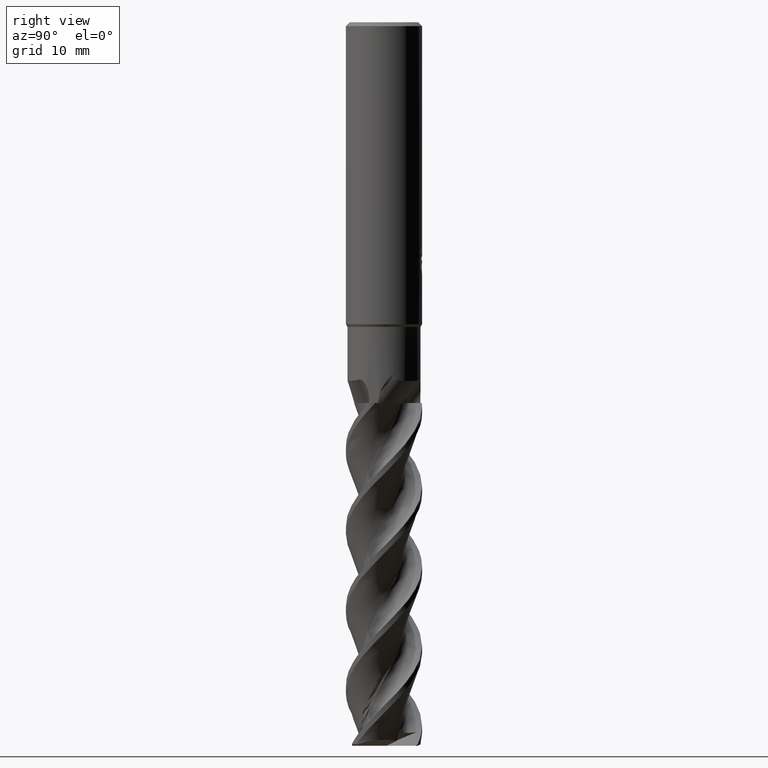
[diagram: clean part render]
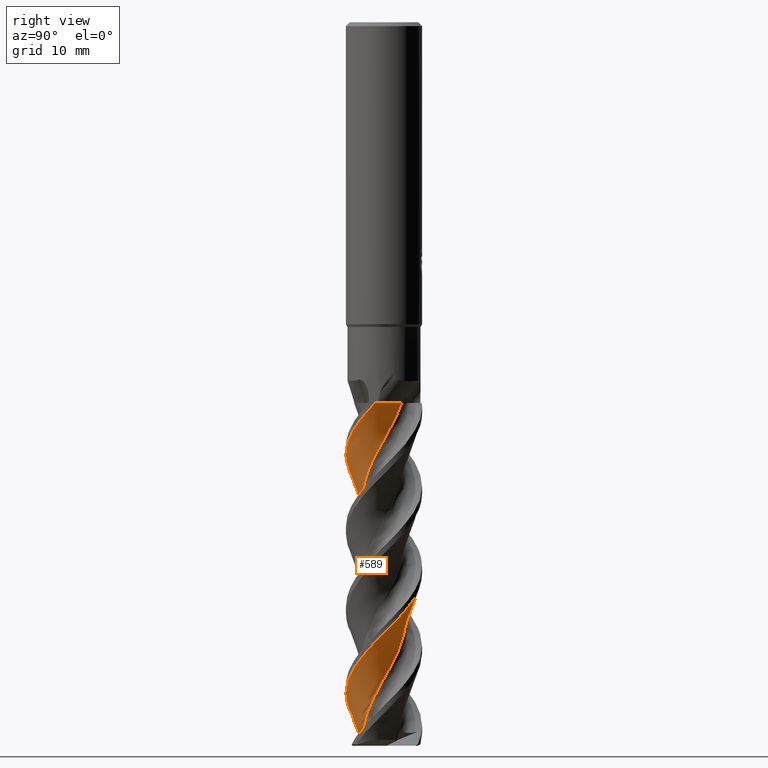
[diagram: same view with one face highlighted and labeled with its STEP entity id]
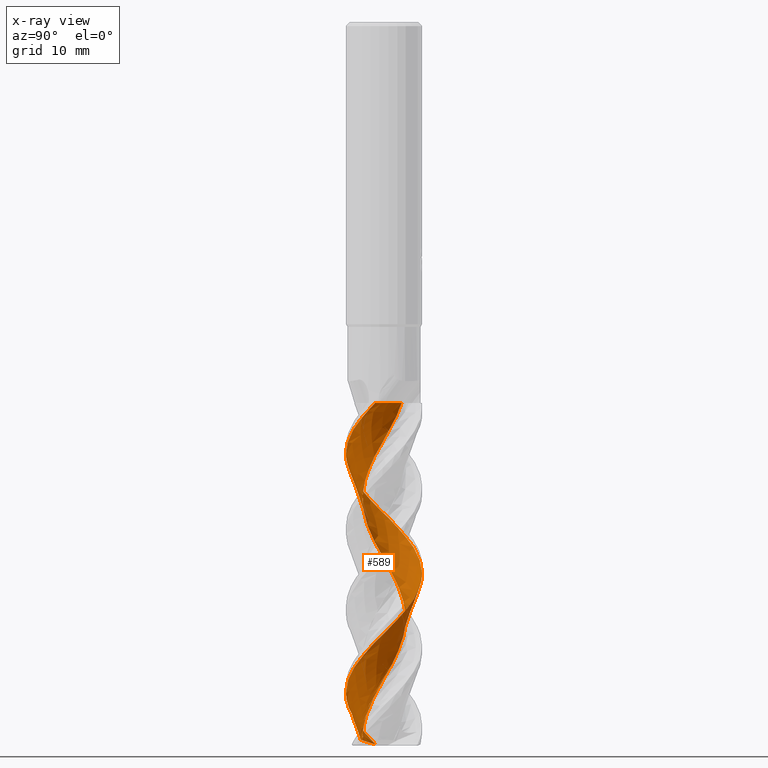
[diagram: x-ray of the same camera — body ghosted, the highlighted face saturated]
A machine part, right view. The second image highlights one B-rep face of the part: STEP entity #589.
The next image is the same camera in x-ray: the body ghosted, the highlighted face saturated — about 0% of this face is hidden behind the body in this view.
In plain terms, the highlighted face is a freeform B-spline surface patch.
Its self-contained STEP definition (entity closure, byte-faithful):
#569=EDGE_CURVE('',#995,#881,#1525,.T.);
#589=ADVANCED_FACE('',(#1547),#1548,.T.);
#669=VERTEX_POINT('',#1635);
#703=EDGE_CURVE('',#1131,#1153,#1674,.T.);
#769=EDGE_CURVE('',#1155,#669,#1745,.T.);
#843=EDGE_CURVE('',#881,#1155,#1825,.T.);
#877=EDGE_CURVE('',#1081,#1131,#1861,.T.);
#881=VERTEX_POINT('',#1865);
#925=EDGE_CURVE('',#1223,#1409,#1916,.T.);
#995=VERTEX_POINT('',#1993);
#1035=EDGE_CURVE('',#1153,#995,#2035,.T.);
#1081=VERTEX_POINT('',#2085);
#1131=VERTEX_POINT('',#2137);
#1153=VERTEX_POINT('',#2160);
#1155=VERTEX_POINT('',#2162);
#1189=EDGE_CURVE('',#669,#1223,#2198,.T.);
#1215=EDGE_CURVE('',#1409,#1081,#2227,.T.);
#1223=VERTEX_POINT('',#2236);
#1409=VERTEX_POINT('',#2447);
#1525=B_SPLINE_CURVE_WITH_KNOTS('',3,(#3531,#3532,#3533,#3534,#3535,#3536,#3537,#3538,#3539,#3540),.UNSPECIFIED.,.F.,.F.,(4,2,2,2,4),(0.0,1.61492595356725,3.22980815200135,4.45684369186639,5.68386404387973),.UNSPECIFIED.);
#1547=FACE_OUTER_BOUND('',#3651,.T.);
#1548=B_SPLINE_SURFACE_WITH_KNOTS('',3,3,((#3652,#3653,#3654,#3655,#3656,#3657,#3658,#3659,#3660,#3661,#3662,#3663,#3664,#3665,#3666,#3667,#3668,#3669,#3670,#3671,#3672,#3673,#3674,#3675,#3676,#3677,#3678,#3679,#3680,#3681,#3682,#3683,#3684,#3685,#3686,#3687,#3688,#3689,#3690,#3691,#3692,#3693,#3694,#3695,#3696,#3697,#3698,#3699,#3700,#3701,#3702,#3703,#3704,#3705,#3706,#3707,#3708,#3709,#3710,#3711,#3712,#3713,#3714,#3715,#3716,#3717,#3718,#3719,#3720,#3721,#3722,#3723,#3724,#3725,#3726,#3727,#3728,#3729,#3730,#3731,#3732,#3733,#3734,#3735,#3736,#3737,#3738),(#3739,#3740,#3741,#3742,#3743,#3744,#3745,#3746,#3747,#3748,#3749,#3750,#3751,#3752,#3753,#3754,#3755,#3756,#3757,#3758,#3759,#3760,#3761,#3762,#3763,#3764,#3765,#3766,#3767,#3768,#3769,#3770,#3771,#3772,#3773,#3774,#3775,#3776,#3777,#3778,#3779,#3780,#3781,#3782,#3783,#3784,#3785,#3786,#3787,#3788,#3789,#3790,#3791,#3792,#3793,#3794,#3795,#3796,#3797,#3798,#3799,#3800,#3801,#3802,#3803,#3804,#3805,#3806,#3807,#3808,#3809,#3810,#3811,#3812,#3813,#3814,#3815,#3816,#3817,#3818,#3819,#3820,#3821,#3822,#3823,#3824,#3825),(#3826,#3827,#3828,#3829,#3830,#3831,#3832,#3833,#3834,#3835,#3836,#3837,#3838,#3839,#3840,#3841,#3842,#3843,#3844,#3845,#3846,#3847,#3848,#3849,#3850,#3851,#3852,#3853,#3854,#3855,#3856,#3857,#3858,#3859,#3860,#3861,#3862,#3863,#3864,#3865,#3866,#3867,#3868,#3869,#3870,#3871,#3872,#3873,#3874,#3875,#3876,#3877,#3878,#3879,#3880,#3881,#3882,#3883,#3884,#3885,#3886,#3887,#3888,#3889,#3890,#3891,#3892,#3893,#3894,#3895,#3896,#3897,#3898,#3899,#3900,#3901,#3902,#3903,#3904,#3905,#3906,#3907,#3908,#3909,#3910,#3911,#3912),(#3913,#3914,#3915,#3916,#3917,#3918,#3919,#3920,#3921,#3922,#3923,#3924,#3925,#3926,#3927,#3928,#3929,#3930,#3931,#3932,#3933,#3934,#3935,#3936,#3937,#3938,#3939,#3940,#3941,#3942,#3943,#3944,#3945,#3946,#3947,#3948,#3949,#3950,#3951,#3952,#3953,#3954,#3955,#3956,#3957,#3958,#3959,#3960,#3961,#3962,#3963,#3964,#3965,#3966,#3967,#3968,#3969,#3970,#3971,#3972,#3973,#3974,#3975,#3976,#3977,#3978,#3979,#3980,#3981,#3982,#3983,#3984,#3985,#3986,#3987,#3988,#3989,#3990,#3991,#3992,#3993,#3994,#3995,#3996,#3997,#3998,#3999),(#4000,#4001,#4002,#4003,#4004,#4005,#4006,#4007,#4008,#4009,#4010,#4011,#4012,#4013,#4014,#4015,#4016,#4017,#4018,#4019,#4020,#4021,#4022,#4023,#4024,#4025,#4026,#4027,#4028,#4029,#4030,#4031,#4032,#4033,#4034,#4035,#4036,#4037,#4038,#4039,#4040,#4041,#4042,#4043,#4044,#4045,#4046,#4047,#4048,#4049,#4050,#4051,#4052,#4053,#4054,#4055,#4056,#4057,#4058,#4059,#4060,#4061,#4062,#4063,#4064,#4065,#4066,#4067,#4068,#4069,#4070,#4071,#4072,#4073,#4074,#4075,#4076,#4077,#4078,#4079,#4080,#4081,#4082,#4083,#4084,#4085,#4086),(#4087,#4088,#4089,#4090,#4091,#4092,#4093,#4094,#4095,#4096,#4097,#4098,#4099,#4100,#4101,#4102,#4103,#4104,#4105,#4106,#4107,#4108,#4109,#4110,#4111,#4112,#4113,#4114,#4115,#4116,#4117,#4118,#4119,#4120,#4121,#4122,#4123,#4124,#4125,#4126,#4127,#4128,#4129,#4130,#4131,#4132,#4133,#4134,#4135,#4136,#4137,#4138,#4139,#4140,#4141,#4142,#4143,#4144,#4145,#4146,#4147,#4148,#4149,#4150,#4151,#4152,#4153,#4154,#4155,#4156,#4157,#4158,#4159,#4160,#4161,#4162,#4163,#4164,#4165,#4166,#4167,#4168,#4169,#4170,#4171,#4172,#4173),(#4174,#4175,#4176,#4177,#4178,#4179,#4180,#4181,#4182,#4183,#4184,#4185,#4186,#4187,#4188,#4189,#4190,#4191,#4192,#4193,#4194,#4195,#4196,#4197,#4198,#4199,#4200,#4201,#4202,#4203,#4204,#4205,#4206,#4207,#4208,#4209,#4210,#4211,#4212,#4213,#4214,#4215,#4216,#4217,#4218,#4219,#4220,#4221,#4222,#4223,#4224,#4225,#4226,#4227,#4228,#4229,#4230,#4231,#4232,#4233,#4234,#4235,#4236,#4237,#4238,#4239,#4240,#4241,#4242,#4243,#4244,#4245,#4246,#4247,#4248,#4249,#4250,#4251,#4252,#4253,#4254,#4255,#4256,#4257,#4258,#4259,#4260)),.UNSPECIFIED.,.F.,.F.,.F.,(4,1,1,1,4),(4,1,2,1,2,1,2,1,2,1,2,1,1,1,2,1,1,1,2,1,1,1,2,1,1,1,2,1,1,1,2,1,1,1,2,1,1,1,2,1,1,1,2,1,1,1,2,1,1,1,2,1,1,1,2,1,1,1,2,1,1,1,2,1,1,1,4),(-1.37901021717097,-1.03425766287823,-0.689505108585486,-0.344752554292743,0.0),(0.0,0.510337287577128,1.02067457515426,1.53101186273138,2.04134915030851,3.06202372546277,4.08269830061702,5.10337287577128,6.12404745092554,7.14472202607979,8.16539660123405,9.1860711763883,10.2067457515426,11.2274203266968,12.2480949018511,13.2687694770053,14.2894440521596,15.3101186273138,16.3307932024681,17.3514677776224,18.3721423527766,19.3928169279309,20.4134915030851,21.4341660782394,22.4548406533936,23.4755152285479,24.4961898037021,25.5168643788564,26.5375389540107,27.5582135291649,28.5788881043192,29.5995626794734,30.6202372546277,31.6409118297819,32.6615864049362,33.6822609800904,34.7029355552447,35.723610130399,36.7442847055532,37.7649592807075,38.7856338558617,39.806308431016,40.8269830061702,41.8476575813245,42.8683321564788,43.889006731633,44.9096813067873,45.9303558819415,46.9510304570958,47.97170503225,48.9923796074043,50.0130541825585,51.0337287577128,52.054403332867,53.0750779080213,54.0957524831756,55.1164270583298,56.1371016334841,57.1577762086383,58.1784507837926,59.1991253589468,60.2197999341011,61.2404745092554,62.2611490844096,63.2818236595639,64.3024982347181,65.3231728098724),.UNSPECIFIED.);
#1635=CARTESIAN_POINT('',(-0.167893876738785,-2.82272229453667,-94.3040077475832));
#1674=B_SPLINE_CURVE_WITH_KNOTS('',3,(#5418,#5419,#5420,#5421,#5422,#5423,#5424,#5425,#5426,#5427,#5428,#5429,#5430,#5431,#5432,#5433,#5434,#5435,#5436,#5437,#5438,#5439,#5440,#5441,#5442,#5443,#5444,#5445,#5446,#5447,#5448,#5449,#5450,#5451,#5452,#5453,#5454,#5455,#5456,#5457,#5458,#5459,#5460,#5461,#5462,#5463,#5464,#5465,#5466,#5467,#5468,#5469,#5470,#5471,#5472,#5473,#5474,#5475,#5476,#5477,#5478,#5479,#5480,#5481,#5482,#5483),.UNSPECIFIED.,.F.,.F.,(4,2,2,2,2,2,2,2,2,2,2,2,2,2,2,2,2,2,2,2,2,2,2,2,2,2,2,2,2,2,2,2,4),(0.0,1.96939136428526,3.05906941455763,4.34631042847481,8.24972494353552,9.22335639470433,12.3423622051135,14.3780290974567,15.2001647782879,16.3265997961907,16.6136008604726,17.5369627397513,18.1325416918398,18.4483017837557,18.8727936040749,19.0274496074301,19.2388614181766,19.9563924115261,20.1871217649858,20.3896372578055,21.173505343628,21.692211118432,21.9869301573489,22.3856451262816,22.532044018744,22.7306850387876,23.3961114134292,23.489273577109,23.6892154205861,24.0502485665978,24.0959291682713,24.1911173798052,24.2590440287938),.UNSPECIFIED.);
#1745=B_SPLINE_CURVE_WITH_KNOTS('',3,(#6366,#6367,#6368,#6369,#6370,#6371,#6372,#6373,#6374,#6375,#6376,#6377,#6378,#6379,#6380,#6381,#6382,#6383,#6384,#6385,#6386,#6387,#6388,#6389,#6390,#6391,#6392,#6393,#6394,#6395,#6396,#6397,#6398,#6399,#6400,#6401,#6402,#6403,#6404,#6405,#6406,#6407,#6408,#6409,#6410,#6411,#6412,#6413,#6414,#6415,#6416,#6417,#6418,#6419,#6420,#6421,#6422,#6423,#6424,#6425,#6426,#6427,#6428,#6429,#6430,#6431,#6432,#6433,#6434,#6435),.UNSPECIFIED.,.F.,.F.,(4,2,2,2,2,2,2,2,2,2,2,2,2,2,2,2,2,2,2,2,2,2,2,2,2,2,2,2,2,2,2,2,2,2,4),(-3285.98096355138,-2698.11765605886,-2516.87769933864,-1900.32442420011,-1393.85489660348,-1159.22572186006,-948.200203582602,-740.443135951774,-645.148819017994,-555.75776496326,-467.409193418407,-426.331501718392,-381.548825225257,-336.588618851971,-313.568469261417,-271.691584483453,-227.328663236844,-203.871975247309,-181.569011351233,-137.852838891581,-94.8157921661384,-74.7518393788989,-56.8362019252811,-39.2102349546762,-31.1022166137131,-23.7677235618136,-16.544030503493,-13.1199654446226,-10.011696787294,-6.93357634760776,-5.57195063950513,-4.2375697718685,-2.93997445180507,-2.26517790582583,-0.0),.UNSPECIFIED.);
#1825=B_SPLINE_CURVE_WITH_KNOTS('',3,(#7329,#7330,#7331,#7332,#7333,#7334,#7335,#7336,#7337,#7338),.UNSPECIFIED.,.F.,.F.,(4,2,2,2,4),(0.0,1.61492595356725,3.22980815200135,4.45684369186639,5.68386404387973),.UNSPECIFIED.);
#1861=B_SPLINE_CURVE_WITH_KNOTS('',3,(#7393,#7394,#7395,#7396,#7397,#7398,#7399,#7400,#7401,#7402,#7403,#7404,#7405,#7406,#7407,#7408,#7409,#7410,#7411,#7412,#7413,#7414,#7415,#7416,#7417,#7418,#7419,#7420,#7421,#7422,#7423,#7424,#7425,#7426,#7427,#7428,#7429,#7430,#7431,#7432,#7433,#7434,#7435,#7436,#7437,#7438,#7439,#7440,#7441,#7442,#7443,#7444,#7445,#7446,#7447,#7448,#7449,#7450,#7451,#7452,#7453,#7454,#7455,#7456,#7457,#7458),.UNSPECIFIED.,.F.,.F.,(4,2,2,2,2,2,2,2,2,2,2,2,2,2,2,2,2,2,2,2,2,2,2,2,2,2,2,2,2,2,2,2,4),(0.0,1.96939136428526,3.05906941455763,4.34631042847481,8.24972494353552,9.22335639470433,12.3423622051135,14.3780290974567,15.2001647782879,16.3265997961907,16.6136008604726,17.5369627397513,18.1325416918398,18.4483017837557,18.8727936040749,19.0274496074301,19.2388614181766,19.9563924115261,20.1871217649858,20.3896372578055,21.173505343628,21.692211118432,21.9869301573489,22.3856451262816,22.532044018744,22.7306850387876,23.3961114134292,23.489273577109,23.6892154205861,24.0502485665978,24.0959291682713,24.1911173798052,24.2590440287938),.UNSPECIFIED.);
#1865=CARTESIAN_POINT('',(2.36581760282713,2.07463274650546,-50.0));
#1916=B_SPLINE_CURVE_WITH_KNOTS('',3,(#8166,#8167,#8168,#8169),.UNSPECIFIED.,.F.,.F.,(4,4),(0.0,0.246233988021749),.UNSPECIFIED.);
#1993=CARTESIAN_POINT('',(4.86204907609834,-1.16596689130146,-50.0));
#2035=B_SPLINE_CURVE_WITH_KNOTS('',3,(#10398,#10399,#10400,#10401,#10402,#10403,#10404,#10405,#10406,#10407,#10408,#10409,#10410,#10411,#10412,#10413,#10414,#10415,#10416,#10417,#10418,#10419,#10420,#10421,#10422,#10423,#10424,#10425,#10426,#10427,#10428,#10429,#10430,#10431,#10432,#10433,#10434,#10435,#10436,#10437,#10438,#10439,#10440,#10441,#10442,#10443,#10444,#10445,#10446,#10447,#10448,#10449,#10450,#10451,#10452,#10453,#10454,#10455,#10456,#10457,#10458,#10459,#10460,#10461,#10462,#10463),.UNSPECIFIED.,.F.,.F.,(4,2,2,2,2,2,2,2,2,2,2,2,2,2,2,2,2,2,2,2,2,2,2,2,2,2,2,2,2,2,2,2,4),(0.0,1.96939136428526,3.05906941455763,4.34631042847481,8.24972494353552,9.22335639470433,12.3423622051135,14.3780290974567,15.2001647782879,16.3265997961907,16.6136008604726,17.5369627397513,18.1325416918398,18.4483017837557,18.8727936040749,19.0274496074301,19.2388614181766,19.9563924115261,20.1871217649858,20.3896372578055,21.173505343628,21.692211118432,21.9869301573489,22.3856451262816,22.532044018744,22.7306850387876,23.3961114134292,23.489273577109,23.6892154205861,24.0502485665978,24.0959291682713,24.1911173798052,24.2590440287938),.UNSPECIFIED.);
#2085=CARTESIAN_POINT('',(-2.85707685864476E-010,-4.9999850944657,-88.1223206336017));
#2137=CARTESIAN_POINT('',(2.50346639862133E-014,4.99994999071096,-72.3958385116424));
#2160=CARTESIAN_POINT('',(8.47319647630052E-015,-4.99991486947696,-56.661525676791));
#2162=CARTESIAN_POINT('',(1.63831327149872,2.30327432338688,-50.0));
#2198=B_SPLINE_CURVE_WITH_KNOTS('',3,(#11772,#11773,#11774,#11775,#11776,#11777,#11778,#11779,#11780,#11781),.UNSPECIFIED.,.F.,.F.,(4,2,2,2,4),(0.0,1.48802243140625,2.8765226550022,4.18943568935013,5.67668087905765),.UNSPECIFIED.);
#2227=B_SPLINE_CURVE_WITH_KNOTS('',3,(#11849,#11850,#11851,#11852,#11853,#11854,#11855,#11856,#11857,#11858,#11859,#11860,#11861,#11862,#11863,#11864,#11865,#11866,#11867,#11868,#11869,#11870,#11871,#11872,#11873,#11874,#11875,#11876,#11877,#11878,#11879,#11880,#11881,#11882,#11883,#11884,#11885,#11886,#11887,#11888,#11889,#11890,#11891,#11892,#11893,#11894,#11895,#11896,#11897,#11898,#11899,#11900,#11901,#11902,#11903,#11904,#11905,#11906,#11907,#11908,#11909,#11910,#11911,#11912,#11913,#11914),.UNSPECIFIED.,.F.,.F.,(4,2,2,2,2,2,2,2,2,2,2,2,2,2,2,2,2,2,2,2,2,2,2,2,2,2,2,2,2,2,2,2,4),(0.0,1.96939136428526,3.05906941455763,4.34631042847481,8.24972494353552,9.22335639470433,12.3423622051135,14.3780290974567,15.2001647782879,16.3265997961907,16.6136008604726,17.5369627397513,18.1325416918398,18.4483017837557,18.8727936040749,19.0274496074301,19.2388614181766,19.9563924115261,20.1871217649858,20.3896372578055,21.173505343628,21.692211118432,21.9869301573489,22.3856451262816,22.532044018744,22.7306850387876,23.3961114134292,23.489273577109,23.6892154205861,24.0502485665978,24.0959291682713,24.1911173798052,24.2590440287938),.UNSPECIFIED.);
#2236=CARTESIAN_POINT('',(-4.82034874695594,-1.1850479796381,-94.8361203926441));
#2447=CARTESIAN_POINT('',(-4.86868815125744,-1.13836535690673,-94.8));
#3531=CARTESIAN_POINT('',(4.90181177574384,-1.73269234823375,-50.0));
#3532=CARTESIAN_POINT('',(4.90112234517832,-1.19438413853367,-50.0));
#3533=CARTESIAN_POINT('',(4.79529690716663,-0.661357333609052,-50.0));
#3534=CARTESIAN_POINT('',(4.38528751564702,0.334114843284718,-50.0));
#3535=CARTESIAN_POINT('',(4.08502913675543,0.787044042711245,-50.0));
#3536=CARTESIAN_POINT('',(3.41872933230165,1.46041771162271,-50.0));
#3537=CARTESIAN_POINT('',(3.08948316786268,1.70685659784372,-50.0));
#3538=CARTESIAN_POINT('',(2.36941811548613,2.09500623000566,-50.0));
#3539=CARTESIAN_POINT('',(1.98257089872158,2.23457777336237,-50.0));
#3540=CARTESIAN_POINT('',(1.5815651302156,2.31508119378806,-50.0));
#3651=EDGE_LOOP('',(#15185,#15186,#15187,#15188,#15189,#15190,#15191,#15192,#15193));
#3652=CARTESIAN_POINT('',(1.44130014929305,4.99626399209107,-105.0));
#3653=CARTESIAN_POINT('',(1.45304210098261,4.99237578430489,-104.830734100296));
#3654=CARTESIAN_POINT('',(1.36374014076185,5.02010904725949,-104.492225832537));
#3655=CARTESIAN_POINT('',(1.03699821361747,5.09906268033917,-104.153721731784));
#3656=CARTESIAN_POINT('',(0.587085114768446,5.16976396234268,-103.815146596983));
#3657=CARTESIAN_POINT('',(0.166500949558712,5.20638337048416,-103.476561028207));
#3658=CARTESIAN_POINT('',(-0.194704710769095,5.19750628423809,-103.138002424907));
#3659=CARTESIAN_POINT('',(-0.697567396392403,5.16260426490687,-102.630211494173));
#3660=CARTESIAN_POINT('',(-1.36357805949957,5.05152985120026,-101.953157196801));
#3661=CARTESIAN_POINT('',(-2.02190396987203,4.80280373614815,-101.276090462709));
#3662=CARTESIAN_POINT('',(-2.66912873933938,4.47552851734103,-100.598992174818));
#3663=CARTESIAN_POINT('',(-3.2632596862026,4.09128832587761,-99.9218866586676));
#3664=CARTESIAN_POINT('',(-3.76325647650913,3.60371722515292,-99.2447998931945));
#3665=CARTESIAN_POINT('',(-4.21702818168469,3.06025610494583,-98.5677158423988));
#3666=CARTESIAN_POINT('',(-4.60948960684701,2.47896426170055,-97.8906368897504));
#3667=CARTESIAN_POINT('',(-4.88447332511284,1.81664007175535,-97.2135724390265));
#3668=CARTESIAN_POINT('',(-5.09226662781109,1.10915724771836,-96.5364937477442));
#3669=CARTESIAN_POINT('',(-5.21717570750048,0.409201432085192,-95.8593900712265));
#3670=CARTESIAN_POINT('',(-5.19646572393782,-0.608799711123746,-94.8437537277215));
#3671=CARTESIAN_POINT('',(-4.97989034775862,-1.60991114261099,-93.8281635029303));
#3672=CARTESIAN_POINT('',(-4.69059576310033,-2.27211079030557,-93.1511075503679));
#3673=CARTESIAN_POINT('',(-4.31516484023819,-2.92307069896598,-92.4740178316292));
#3674=CARTESIAN_POINT('',(-3.88726130254912,-3.50441279215576,-91.7968995290826));
#3675=CARTESIAN_POINT('',(-3.12846977679917,-4.19369793132379,-90.7812424906702));
#3676=CARTESIAN_POINT('',(-2.25200686807683,-4.72416766148777,-89.7656410787152));
#3677=CARTESIAN_POINT('',(-1.5741295092316,-4.96846371274629,-89.0885875459882));
#3678=CARTESIAN_POINT('',(-0.844966665876032,-5.14300094966649,-88.4115059502931));
#3679=CARTESIAN_POINT('',(-0.129386091388389,-5.23210130847566,-87.7343949571493));
#3680=CARTESIAN_POINT('',(0.89338967449245,-5.155257826894,-86.7187447359533));
#3681=CARTESIAN_POINT('',(1.88213003037028,-4.88336241123301,-85.7031455355489));
#3682=CARTESIAN_POINT('',(2.52572435855831,-4.55895153156554,-85.0260907030231));
#3683=CARTESIAN_POINT('',(3.15347479933747,-4.14969454916452,-84.3490068979786));
#3684=CARTESIAN_POINT('',(3.7098034244962,-3.69169638972315,-83.6718942577699));
#3685=CARTESIAN_POINT('',(4.35693455124906,-2.89685270689518,-82.6562430076403));
#3686=CARTESIAN_POINT('',(4.83941186255769,-1.99241805325595,-81.640643792117));
#3687=CARTESIAN_POINT('',(5.04660064792334,-1.30201899714424,-80.9635892618685));
#3688=CARTESIAN_POINT('',(5.18128115296593,-0.564576012638522,-80.286505684402));
#3689=CARTESIAN_POINT('',(5.2313971918914,0.154520311592002,-79.6093931240225));
#3690=CARTESIAN_POINT('',(5.09931855634007,1.17116067415739,-78.593741763799));
#3691=CARTESIAN_POINT('',(4.77442871989439,2.14346341802597,-77.5781423986177));
#3692=CARTESIAN_POINT('',(4.41567375559355,2.76861367859481,-76.9010878539244));
#3693=CARTESIAN_POINT('',(3.97292982544553,3.3734590872742,-76.2240043544446));
#3694=CARTESIAN_POINT('',(3.48535323971604,3.90431536133912,-75.5468918845332));
#3695=CARTESIAN_POINT('',(2.65645846844327,4.5075373190647,-74.5312406397705));
#3696=CARTESIAN_POINT('',(1.72713587732145,4.94030522751301,-73.5156413333077));
#3697=CARTESIAN_POINT('',(1.02655218373105,5.10975449807702,-72.8385867764049));
#3698=CARTESIAN_POINT('',(0.282955233229984,5.20426163959179,-72.1615032376175));
#3699=CARTESIAN_POINT('',(-0.437751368336018,5.21533724372059,-71.4843907336554));
#3700=CARTESIAN_POINT('',(-1.44570927790949,5.02837867060523,-70.4687394594137));
#3701=CARTESIAN_POINT('',(-2.39897848015366,4.65129244139291,-69.4531401458973));
#3702=CARTESIAN_POINT('',(-3.00378059875699,4.25919139347725,-68.7760855970648));
#3703=CARTESIAN_POINT('',(-3.58375583514529,3.78432367584362,-68.0990020703163));
#3704=CARTESIAN_POINT('',(-4.08741760537569,3.26869940570677,-67.4218895743016));
#3705=CARTESIAN_POINT('',(-4.64484199856001,2.40834339691645,-66.4062383032607));
#3706=CARTESIAN_POINT('',(-5.02662189179927,1.45694753067094,-65.390638988955));
#3707=CARTESIAN_POINT('',(-5.15786612219756,0.748218856833514,-64.7135844410102));
#3708=CARTESIAN_POINT('',(-5.21194924482951,0.000598672479703799,-64.0365009184196));
#3709=CARTESIAN_POINT('',(-5.18396459807369,-0.719648686034842,-63.3593884277165));
#3710=CARTESIAN_POINT('',(-4.94267292450403,-1.71600315835277,-62.3437371532028));
#3711=CARTESIAN_POINT('',(-4.51449286462026,-2.64744906061343,-61.3281378130869));
#3712=CARTESIAN_POINT('',(-4.09020051777995,-3.23012030334957,-60.6510832279903));
#3713=CARTESIAN_POINT('',(-3.58461150115479,-3.78351414237833,-59.973999657486));
#3714=CARTESIAN_POINT('',(-3.04246426506943,-4.2584958938219,-59.2968871392649));
#3715=CARTESIAN_POINT('',(-2.15318073568295,-4.76848914322171,-58.2812359040606));
#3716=CARTESIAN_POINT('',(-1.1824871183344,-5.0981725216642,-57.2656366846053));
#3717=CARTESIAN_POINT('',(-0.467656245378955,-5.19083093927486,-56.5885822236201));
#3718=CARTESIAN_POINT('',(0.28184392007454,-5.20432515640424,-55.9114987858335));
#3719=CARTESIAN_POINT('',(0.999551228110258,-5.1373442745829,-55.2343863022894));
#3720=CARTESIAN_POINT('',(1.9813278570817,-4.84241630776818,-54.2187348903546));
#3721=CARTESIAN_POINT('',(2.88806797991953,-4.36446795230219,-53.2031353746866));
#3722=CARTESIAN_POINT('',(3.44676466308487,-3.90936770933564,-52.5260807387225));
#3723=CARTESIAN_POINT('',(3.97183572160678,-3.37473105617911,-51.8489972073325));
#3724=CARTESIAN_POINT('',(4.41675816113137,-2.80776771255038,-51.1718848490093));
#3725=CARTESIAN_POINT('',(4.87804205332063,-1.89195788058595,-50.1562337036932));
#3726=CARTESIAN_POINT('',(5.15483511960306,-0.904243296781175,-49.140633980394));
#3727=CARTESIAN_POINT('',(5.20858425335042,-0.184912082841484,-48.4635785230617));
#3728=CARTESIAN_POINT('',(5.18129548827396,0.564691471363377,-47.7864936551641));
#3729=CARTESIAN_POINT('',(5.07531535913824,1.27765945052537,-47.1093802439522));
#3730=CARTESIAN_POINT('',(4.72775502405352,2.24110576073414,-46.0937303096642));
#3731=CARTESIAN_POINT('',(4.20189889881286,3.11981010225301,-45.0781357808959));
#3732=CARTESIAN_POINT('',(3.71732323054603,3.65309199536305,-44.4010868089995));
#3733=CARTESIAN_POINT('',(3.15456900442542,4.14888016508546,-43.724009809057));
#3734=CARTESIAN_POINT('',(2.56318411625027,4.5632134897466,-43.0468996298769));
#3735=CARTESIAN_POINT('',(1.62285367597011,4.97407319595628,-42.031240973693));
#3736=CARTESIAN_POINT('',(0.625008107081869,5.19578460763804,-41.0156279487759));
#3737=CARTESIAN_POINT('',(-0.0891015972737723,5.2108111642986,-40.338564808829));
#3738=CARTESIAN_POINT('',(-0.45777951967538,5.17818541960388,-40.0000206562233));
#3739=CARTESIAN_POINT('',(0.966942078805657,4.9702833384249,-105.0));
#3740=CARTESIAN_POINT('',(0.978704942357166,4.96601333142878,-104.830732732706));
#3741=CARTESIAN_POINT('',(0.889824675494283,4.98313199896695,-104.492333728807));
#3742=CARTESIAN_POINT('',(0.566327761020459,5.03141730228125,-104.153976524819));
#3743=CARTESIAN_POINT('',(0.123942725515318,5.06203629416756,-103.81529758326));
#3744=CARTESIAN_POINT('',(-0.287080954580953,5.06185660053144,-103.476564299969));
#3745=CARTESIAN_POINT('',(-0.636513780245712,5.02219709402023,-103.137943205129));
#3746=CARTESIAN_POINT('',(-1.12092502378387,4.94486580764316,-102.63022110965));
#3747=CARTESIAN_POINT('',(-1.75688557201526,4.77959718878408,-101.953265616738));
#3748=CARTESIAN_POINT('',(-2.37364449264401,4.48177139457896,-101.276259706553));
#3749=CARTESIAN_POINT('',(-2.97302822317534,4.10888477874195,-100.599112941419));
#3750=CARTESIAN_POINT('',(-3.51591683955644,3.68521257494369,-99.9219326602963));
#3751=CARTESIAN_POINT('',(-3.95856836753973,3.16944790752938,-99.2448339065373));
#3752=CARTESIAN_POINT('',(-4.35169097083198,2.60352654505832,-98.5677475638374));
#3753=CARTESIAN_POINT('',(-4.68204056854048,2.00618527477462,-97.8906841407003));
#3754=CARTESIAN_POINT('',(-4.89165487324355,1.34044125716113,-97.2136850352384));
#3755=CARTESIAN_POINT('',(-5.03243957705249,0.636677673110546,-96.5366230540202));
#3756=CARTESIAN_POINT('',(-5.0932774793461,-0.0526660394640559,-95.8594507156893));
#3757=CARTESIAN_POINT('',(-4.98519077206707,-1.03766185781773,-94.8437766622083));
#3758=CARTESIAN_POINT('',(-4.68876747261723,-1.98936087032559,-93.8283060130858));
#3759=CARTESIAN_POINT('',(-4.35140196558452,-2.60648145955587,-93.1513441021961));
#3760=CARTESIAN_POINT('',(-3.93164988755348,-3.20550968573186,-92.4742332007079));
#3761=CARTESIAN_POINT('',(-3.46681354174007,-3.732348291216,-91.7969962234199));
#3762=CARTESIAN_POINT('',(-2.67171607245768,-4.33495002531357,-90.7812308709659));
#3763=CARTESIAN_POINT('',(-1.77629839422223,-4.77342215219973,-89.7657109714638));
#3764=CARTESIAN_POINT('',(-1.0981253661175,-4.9519822657568,-89.0887598122504));
#3765=CARTESIAN_POINT('',(-0.376186034692165,-5.05876546383348,-88.4116848283513));
#3766=CARTESIAN_POINT('',(0.325241075965663,-5.08362617645153,-87.7344801278248));
#3767=CARTESIAN_POINT('',(1.31003865973253,-4.9207703044462,-86.7187448447839));
#3768=CARTESIAN_POINT('',(2.24496974045373,-4.5717924391624,-85.7032346790431));
#3769=CARTESIAN_POINT('',(2.84102052066081,-4.2019658734987,-85.0262777641454));
#3770=CARTESIAN_POINT('',(3.41463255333475,-3.75139017224128,-84.3491930145585));
#3771=CARTESIAN_POINT('',(3.91462184877725,-3.25952051822753,-83.6719810427232));
#3772=CARTESIAN_POINT('',(4.47324491706594,-2.43311809640917,-82.6562412192574));
#3773=CARTESIAN_POINT('',(4.86278713424197,-1.51473470720755,-81.640730986107));
#3774=CARTESIAN_POINT('',(5.00430105842431,-0.827612070770493,-80.963775418136));
#3775=CARTESIAN_POINT('',(5.0717307316218,-0.101057713144755,-80.2866916739856));
#3776=CARTESIAN_POINT('',(5.05849191420218,0.600426004360712,-79.6094800497797));
#3777=CARTESIAN_POINT('',(4.84261982525963,1.57450220285621,-78.5937397385155));
#3778=CARTESIAN_POINT('',(4.44369038546957,2.48891953832165,-77.5782288589038));
#3779=CARTESIAN_POINT('',(4.04215428449438,3.06413729718286,-76.9012732273514));
#3780=CARTESIAN_POINT('',(3.56107234594633,3.61267391088161,-76.2241898112136));
#3781=CARTESIAN_POINT('',(3.04271681917388,4.08542545501134,-75.5469785958215));
#3782=CARTESIAN_POINT('',(2.18710112084624,4.59854418533912,-74.5312387955584));
#3783=CARTESIAN_POINT('',(1.24888771034248,4.93775171041337,-73.5157281850452));
#3784=CARTESIAN_POINT('',(0.555135589954785,5.04180297339391,-72.8387724610585));
#3785=CARTESIAN_POINT('',(-0.173945008634347,5.06975327107032,-72.1616889222711));
#3786=CARTESIAN_POINT('',(-0.873633130258193,5.01852530965549,-71.4844775360388));
#3787=CARTESIAN_POINT('',(-1.834550991441,4.75020488748134,-70.4687376110153));
#3788=CARTESIAN_POINT('',(-2.72600893284957,4.30232412010797,-69.4532269171471));
#3789=CARTESIAN_POINT('',(-3.27863365195374,3.87020962456179,-68.776271319224));
#3790=CARTESIAN_POINT('',(-3.80030523662956,3.3601106444766,-68.0991877369142));
#3791=CARTESIAN_POINT('',(-4.24427981841252,2.81690066214317,-67.421976444723));
#3792=CARTESIAN_POINT('',(-4.71028597081986,1.93474481488329,-66.4062365158486));
#3793=CARTESIAN_POINT('',(-4.99816196587405,0.979540147692147,-65.3907258534963));
#3794=CARTESIAN_POINT('',(-5.06447487848959,0.281175952806171,-64.7137702111145));
#3795=CARTESIAN_POINT('',(-5.05288571748432,-0.44834354571543,-64.036686688524));
#3796=CARTESIAN_POINT('',(-4.96382775945527,-1.14422804648433,-63.3594753789323));
#3797=CARTESIAN_POINT('',(-4.64384176953285,-2.08920352195731,-62.3437354422165));
#3798=CARTESIAN_POINT('',(-4.14831949340731,-2.95509315935255,-61.3282246866336));
#3799=CARTESIAN_POINT('',(-3.68689927789339,-3.48349575855633,-60.6512688461572));
#3800=CARTESIAN_POINT('',(-3.14928959496715,-3.97676310963457,-59.9741851645304));
#3801=CARTESIAN_POINT('',(-2.5828310431882,-4.39065146800398,-59.2969737061944));
#3802=CARTESIAN_POINT('',(-1.67673227132347,-4.80818034944299,-58.2812339745544));
#3803=CARTESIAN_POINT('',(-0.707322556037828,-5.04389028649789,-57.2657237626346));
#3804=CARTESIAN_POINT('',(-0.00635934656864867,-5.07227162828966,-56.5887684322014));
#3805=CARTESIAN_POINT('',(0.721506965394368,-5.02116715973571,-55.9116853277826));
#3806=CARTESIAN_POINT('',(1.41157615034064,-4.89452048099298,-55.2344739792362));
#3807=CARTESIAN_POINT('',(2.33778606202767,-4.52380112406595,-54.2187334111458));
#3808=CARTESIAN_POINT('',(3.1754268972324,-3.98217025738124,-53.2032218479837));
#3809=CARTESIAN_POINT('',(3.67793763493762,-3.49294311367959,-52.5262658730355));
#3810=CARTESIAN_POINT('',(4.14125417509651,-2.92959389177058,-51.8491823972069));
#3811=CARTESIAN_POINT('',(4.52386519997508,-2.34166010766298,-51.1719718154863));
#3812=CARTESIAN_POINT('',(4.89188771874209,-1.41405703295515,-50.156232615391));
#3813=CARTESIAN_POINT('',(5.07486381720341,-0.432717658117971,-49.1407201448769));
#3814=CARTESIAN_POINT('',(5.06514097315184,0.269264701769417,-48.4637603022208));
#3815=CARTESIAN_POINT('',(4.97448724197021,0.993739478716952,-47.7866705449279));
#3816=CARTESIAN_POINT('',(4.81043606443042,1.67586028509377,-47.1094547230989));
#3817=CARTESIAN_POINT('',(4.39027314980635,2.5797481095718,-46.093720095407));
#3818=CARTESIAN_POINT('',(3.80462075030522,3.38606746820283,-45.0782304892023));
#3819=CARTESIAN_POINT('',(3.28900495117991,3.86140780590419,-44.4013001808576));
#3820=CARTESIAN_POINT('',(2.70090499669051,4.29393291019485,-43.7242466833494));
#3821=CARTESIAN_POINT('',(2.09192979494587,4.64480497929428,-43.0470473549303));
#3822=CARTESIAN_POINT('',(1.14491423384734,4.96184563112179,-42.0312712011308));
#3823=CARTESIAN_POINT('',(0.158513019586647,5.09052463029828,-41.0156821165577));
#3824=CARTESIAN_POINT('',(-0.535062541121385,5.04364860988474,-40.3386617966922));
#3825=CARTESIAN_POINT('',(-0.889719442314755,4.98040151817742,-40.0000911413415));
#3826=CARTESIAN_POINT('',(0.027385381140234,4.75322803631672,-105.0));
#3827=CARTESIAN_POINT('',(0.039322947446953,4.74820179721637,-104.830730180322));
#3828=CARTESIAN_POINT('',(-0.0450196237440506,4.74424066720376,-104.492535101177));
#3829=CARTESIAN_POINT('',(-0.351353209336786,4.73232627741979,-104.154452055142));
#3830=CARTESIAN_POINT('',(-0.764733317273502,4.68541070925292,-103.81557937716));
#3831=CARTESIAN_POINT('',(-1.14383044247882,4.61496942573453,-103.476570405426));
#3832=CARTESIAN_POINT('',(-1.45900667770573,4.51785019926348,-103.137832680743));
#3833=CARTESIAN_POINT('',(-1.89175206696597,4.36209284578864,-102.63023905514));
#3834=CARTESIAN_POINT('',(-2.44875749442293,4.09890812473216,-101.953467967623));
#3835=CARTESIAN_POINT('',(-2.96530351861607,3.71736246285584,-101.27657557054));
#3836=CARTESIAN_POINT('',(-3.45314191111681,3.26991536273986,-100.599338337001));
#3837=CARTESIAN_POINT('',(-3.87983417670038,2.78522376562861,-99.9220185099361));
#3838=CARTESIAN_POINT('',(-4.19799651450374,2.2330379382576,-99.2448973942858));
#3839=CARTESIAN_POINT('',(-4.46201859433217,1.64331054825653,-98.5678067598775));
#3840=CARTESIAN_POINT('',(-4.66257382556951,1.03549241493198,-97.8907723130937));
#3841=CARTESIAN_POINT('',(-4.74027510626009,0.385661408338523,-97.2138952141036));
#3842=CARTESIAN_POINT('',(-4.7483536477125,-0.287342252580775,-96.5368643486819));
#3843=CARTESIAN_POINT('',(-4.68475849091387,-0.933164394832093,-95.8595639167241));
#3844=CARTESIAN_POINT('',(-4.41342739944064,-1.82174620635424,-94.8438194817446));
#3845=CARTESIAN_POINT('',(-3.97452591520196,-2.64684147759132,-93.8285719989535));
#3846=CARTESIAN_POINT('',(-3.55672015917962,-3.15708396048713,-93.151785564433));
#3847=CARTESIAN_POINT('',(-3.06641152186767,-3.63683563438655,-92.4746351788214));
#3848=CARTESIAN_POINT('',(-2.54668862696521,-4.04182622798688,-91.7971766840587));
#3849=CARTESIAN_POINT('',(-1.70915838506905,-4.45844621844221,-90.7812091604701));
#3850=CARTESIAN_POINT('',(-0.807855619459556,-4.70634858850426,-89.7658414081359));
#3851=CARTESIAN_POINT('',(-0.151970722105867,-4.75335011496807,-89.0890813188064));
#3852=CARTESIAN_POINT('',(0.531941564468757,-4.72715606365565,-88.4120186782745));
#3853=CARTESIAN_POINT('',(1.18270661024502,-4.62847944717981,-87.7346390862911));
#3854=CARTESIAN_POINT('',(2.06162056119951,-4.30683829736015,-86.7187450574251));
#3855=CARTESIAN_POINT('',(2.86211779138111,-3.82244284395198,-85.7034010466611));
#3856=CARTESIAN_POINT('',(3.34728623898959,-3.37834361519333,-85.0266268916343));
#3857=CARTESIAN_POINT('',(3.79825382693185,-2.86398355126589,-84.3495403654509));
#3858=CARTESIAN_POINT('',(4.173789339841,-2.32398816822022,-83.6721430012845));
#3859=CARTESIAN_POINT('',(4.54443408660889,-1.46528128573959,-82.656237874327));
#3860=CARTESIAN_POINT('',(4.74327417737557,-0.551349943399734,-81.6408937390066));
#3861=CARTESIAN_POINT('',(4.75459487948116,0.106362532853431,-80.9641228434556));
#3862=CARTESIAN_POINT('',(4.69132926515098,0.787735644876682,-80.2870388012421));
#3863=CARTESIAN_POINT('',(4.55752641209462,1.43194782337427,-79.6096422946155));
#3864=CARTESIAN_POINT('',(4.18890253274125,2.29174185331728,-78.593735989855));
#3865=CARTESIAN_POINT('',(3.6620591436755,3.06463314117458,-77.5783902247712));
#3866=CARTESIAN_POINT('',(3.19235033120554,3.52510820862497,-76.9016191665876));
#3867=CARTESIAN_POINT('',(2.65420007909648,3.94769756462295,-76.2245359690806));
#3868=CARTESIAN_POINT('',(2.09451764600396,4.29354134056372,-75.5471404319301));
#3869=CARTESIAN_POINT('',(1.21682712093688,4.61717560659751,-74.5312353691581));
#3870=CARTESIAN_POINT('',(0.293397960156612,4.76619096392144,-73.5158902299023));
#3871=CARTESIAN_POINT('',(-0.36393091882999,4.74184004354948,-72.8391190762299));
#3872=CARTESIAN_POINT('',(-1.0408172699892,4.64174546103053,-72.1620354103775));
#3873=CARTESIAN_POINT('',(-1.67678883842879,4.47324121874703,-71.4846395374083));
#3874=CARTESIAN_POINT('',(-2.51532019940479,4.05858943989383,-70.4687341425391));
#3875=CARTESIAN_POINT('',(-3.25853078736457,3.49065046649705,-69.4533889499318));
#3876=CARTESIAN_POINT('',(-3.6928868773631,2.99667925806348,-68.776617832685));
#3877=CARTESIAN_POINT('',(-4.08570327036918,2.43641904239509,-68.0995343629923));
#3878=CARTESIAN_POINT('',(-4.40071697597454,1.85881856750632,-67.4221385294962));
#3879=CARTESIAN_POINT('',(-4.67632173767052,0.964886557551914,-66.4062332009758));
#3880=CARTESIAN_POINT('',(-4.77508742380882,0.0347484910639282,-65.3908879877437));
#3881=CARTESIAN_POINT('',(-4.71516102666316,-0.620289960136144,-64.7141168748914));
#3882=CARTESIAN_POINT('',(-4.57854344542576,-1.29075528845026,-64.0370334469722));
#3883=CARTESIAN_POINT('',(-4.37583340266802,-1.91666349931727,-63.3596376716648));
#3884=CARTESIAN_POINT('',(-3.91636064409823,-2.73150406421928,-62.3437322776467));
#3885=CARTESIAN_POINT('',(-3.30898739469149,-3.44285886928624,-61.3283867628125));
#3886=CARTESIAN_POINT('',(-2.79220879140705,-3.84981517666791,-60.6516153227107));
#3887=CARTESIAN_POINT('',(-2.21149268757413,-4.2116995777486,-59.9745313357052));
#3888=CARTESIAN_POINT('',(-1.61768108308704,-4.49495465046153,-59.2971353418093));
#3889=CARTESIAN_POINT('',(-0.71013819811631,-4.72172501721148,-58.2812304001037));
#3890=CARTESIAN_POINT('',(0.223996566190411,-4.76995807183901,-57.2658861978905));
#3891=CARTESIAN_POINT('',(0.874856206280354,-4.67462777931322,-56.5891160318332));
#3892=CARTESIAN_POINT('',(1.53697657952577,-4.50187146360939,-55.9120334093165));
#3893=CARTESIAN_POINT('',(2.15100961434931,-4.26552740615346,-55.2346376367354));
#3894=CARTESIAN_POINT('',(2.93972057560126,-3.76258391439267,-54.2187306481398));
#3895=CARTESIAN_POINT('',(3.61701517015902,-3.11765374244967,-53.2033832716668));
#3896=CARTESIAN_POINT('',(3.99528996738105,-2.57973671320513,-52.5266113543241));
#3897=CARTESIAN_POINT('',(4.32511928694365,-1.98046311411019,-51.849528068643));
#3898=CARTESIAN_POINT('',(4.57582406122675,-1.37228111291269,-51.1721340730672));
#3899=CARTESIAN_POINT('',(4.75324217577772,-0.453554097553344,-50.1562305620615));
#3900=CARTESIAN_POINT('',(4.75082634411456,0.48238341995811,-49.1408809904602));
#3901=CARTESIAN_POINT('',(4.62021345726458,1.12758092334072,-48.4640995594498));
#3902=CARTESIAN_POINT('',(4.41159145672267,1.77975014521047,-47.7870006876761));
#3903=CARTESIAN_POINT('',(4.14214889190895,2.37997256738032,-47.1095936639118));
#3904=CARTESIAN_POINT('',(3.59752802669991,3.13948876210043,-46.0937009916182));
#3905=CARTESIAN_POINT('',(2.91749140729801,3.78024387367953,-45.0784073216446));
#3906=CARTESIAN_POINT('',(2.35996956438851,4.12891187344177,-44.401698378774));
#3907=CARTESIAN_POINT('',(1.74320309752331,4.42610480747688,-43.7246888000835));
#3908=CARTESIAN_POINT('',(1.12113933105738,4.64394772613184,-43.0473230521001));
#3909=CARTESIAN_POINT('',(0.193408905991602,4.77104661952849,-42.0313275475502));
#3910=CARTESIAN_POINT('',(-0.737726465267119,4.71766693293411,-41.0157831709514));
#3911=CARTESIAN_POINT('',(-1.36869361172259,4.5541478927775,-40.3388428821689));
#3912=CARTESIAN_POINT('',(-1.68465415039608,4.43454569024896,-40.0002226908854));
#3913=CARTESIAN_POINT('',(-1.18904592972189,3.9704541942612,-105.0));
#3914=CARTESIAN_POINT('',(-1.17647832379302,3.96444887640771,-104.830727349671));
#3915=CARTESIAN_POINT('',(-1.24372757263534,3.93302763354087,-104.492758432009));
#3916=CARTESIAN_POINT('',(-1.49531003839494,3.84482420049231,-104.154979441372));
#3917=CARTESIAN_POINT('',(-1.82843250594431,3.70314962220878,-103.81589189877));
#3918=CARTESIAN_POINT('',(-2.126834452857,3.54969853912438,-103.476577177289));
#3919=CARTESIAN_POINT('',(-2.36451622894575,3.38882452047309,-103.137710103748));
#3920=CARTESIAN_POINT('',(-2.6845591747481,3.14853806028701,-102.630258958128));
#3921=CARTESIAN_POINT('',(-3.08045395783511,2.78714303566864,-101.95369238187));
#3922=CARTESIAN_POINT('',(-3.41307461718287,2.33820661120169,-101.276925882433));
#3923=CARTESIAN_POINT('',(-3.70563200144159,1.84204538722463,-100.599588307182));
#3924=CARTESIAN_POINT('',(-3.93734194397987,1.33011501463662,-99.9221137269143));
#3925=CARTESIAN_POINT('',(-4.06128482682547,0.789622648548692,-99.2449677977191));
#3926=CARTESIAN_POINT('',(-4.13097266801468,0.231736716544162,-98.567872418479));
#3927=CARTESIAN_POINT('',(-4.14297170737894,-0.325069998121478,-97.8908701061359));
#3928=CARTESIAN_POINT('',(-4.04250470742891,-0.885558055201511,-97.2141282933171));
#3929=CARTESIAN_POINT('',(-3.87882220753187,-1.44785566543203,-96.5371319746361));
#3930=CARTESIAN_POINT('',(-3.66161597483479,-1.96914902842962,-95.8596894540579));
#3931=CARTESIAN_POINT('',(-3.20869487079829,-2.63885168184669,-94.8438669586636));
#3932=CARTESIAN_POINT('',(-2.6328267521992,-3.2129736861683,-93.8288669778417));
#3933=CARTESIAN_POINT('',(-2.1556395114283,-3.53154350176212,-93.152275187122));
#3934=CARTESIAN_POINT('',(-1.62618905121648,-3.80712906626382,-92.4750809707767));
#3935=CARTESIAN_POINT('',(-1.09075108799565,-4.01226749748095,-91.7973768279523));
#3936=CARTESIAN_POINT('',(-0.287602375313389,-4.14480461058879,-90.7811850992422));
#3937=CARTESIAN_POINT('',(0.52539454837462,-4.12067554802375,-89.7659860710813));
#3938=CARTESIAN_POINT('',(1.08311576170571,-3.99324118035588,-89.0894378905718));
#3939=CARTESIAN_POINT('',(1.64592478095612,-3.798587674956,-88.4123889273686));
#3940=CARTESIAN_POINT('',(2.16253413994907,-3.55118461907942,-87.734815374448));
#3941=CARTESIAN_POINT('',(2.81146030981264,-3.05904976061455,-86.718745282974));
#3942=CARTESIAN_POINT('',(3.35350922148996,-2.45162557438264,-85.703585576466));
#3943=CARTESIAN_POINT('',(3.64447863377829,-1.95888236923105,-85.0270140639432));
#3944=CARTESIAN_POINT('',(3.88995863347677,-1.41664894513979,-84.3499256200918));
#3945=CARTESIAN_POINT('',(4.06539073865874,-0.871804522858342,-83.6723226213189));
#3946=CARTESIAN_POINT('',(4.15426863859571,-0.0627906208950388,-82.6562341667929));
#3947=CARTESIAN_POINT('',(4.08613107506769,0.748173728222199,-81.6410742208869));
#3948=CARTESIAN_POINT('',(3.92855425063244,1.29835978957926,-80.9645081644024));
#3949=CARTESIAN_POINT('',(3.70367785700066,1.849686189007,-80.2874237714542));
#3950=CARTESIAN_POINT('',(3.42869716544149,2.3519187602174,-79.6098222269793));
#3951=CARTESIAN_POINT('',(2.90235555462107,2.97292673112762,-78.5937318059889));
#3952=CARTESIAN_POINT('',(2.2666727108365,3.48116105517458,-77.578569187385));
#3953=CARTESIAN_POINT('',(1.75888897120591,3.74507952051128,-76.9020028481442));
#3954=CARTESIAN_POINT('',(1.20402161155932,3.96092325805569,-76.224919855453));
#3955=CARTESIAN_POINT('',(0.650332860120149,4.10664589477325,-75.5473199132557));
#3956=CARTESIAN_POINT('',(-0.162458834212216,4.15157311459121,-74.5312315536626));
#3957=CARTESIAN_POINT('',(-0.968592445333025,4.03956899493628,-73.5160699821011));
#3958=CARTESIAN_POINT('',(-1.50940180785205,3.8524045948801,-72.8395034385269));
#3959=CARTESIAN_POINT('',(-2.04768411934255,3.59799655312703,-72.1624197318965));
#3960=CARTESIAN_POINT('',(-2.5342437888708,3.29622360922638,-71.4848191852973));
#3961=CARTESIAN_POINT('',(-3.12580233153591,2.73702723080203,-70.4687302919505));
#3962=CARTESIAN_POINT('',(-3.59884944831728,2.07474712855308,-69.4535686128771));
#3963=CARTESIAN_POINT('',(-3.83487306421263,1.55340557557132,-68.7770021984382));
#3964=CARTESIAN_POINT('',(-4.02034011198838,0.98765392708994,-68.0999187212956));
#3965=CARTESIAN_POINT('',(-4.1358506976881,0.426880931228498,-67.4223183185168));
#3966=CARTESIAN_POINT('',(-4.13667507558207,-0.387147665291722,-66.4062294957606));
#3967=CARTESIAN_POINT('',(-3.98116156510234,-1.1860219662281,-65.3910677910982));
#3968=CARTESIAN_POINT('',(-3.76497467229585,-1.71589241211899,-64.7145013705105));
#3969=CARTESIAN_POINT('',(-3.48178009570034,-2.23959809249613,-64.0374179889095));
#3970=CARTESIAN_POINT('',(-3.15409157477311,-2.70909424059835,-63.3598176324691));
#3971=CARTESIAN_POINT('',(-2.56366571588314,-3.26949278584878,-62.34372874523));
#3972=CARTESIAN_POINT('',(-1.87672599097381,-3.70596826976482,-61.3285665833292));
#3973=CARTESIAN_POINT('',(-1.3433624081006,-3.91340035596911,-60.6519995284069));
#3974=CARTESIAN_POINT('',(-0.768396454441834,-4.06794332808843,-59.9749153085859));
#3975=CARTESIAN_POINT('',(-0.202195688044324,-4.15290197256896,-59.297314540831));
#3976=CARTESIAN_POINT('',(0.610675848429044,-4.10962589381868,-58.2812264143805));
#3977=CARTESIAN_POINT('',(1.39996272635854,-3.91106125140465,-57.2660663970973));
#3978=CARTESIAN_POINT('',(1.91736685649436,-3.66647519898206,-56.5895015059329));
#3979=CARTESIAN_POINT('',(2.42499192929573,-3.35530158953531,-55.9124194780063));
#3980=CARTESIAN_POINT('',(2.87606249611364,-3.00263449838208,-55.2348191364925));
#3981=CARTESIAN_POINT('',(3.40361681666137,-2.38272477915478,-54.2187275890484));
#3982=CARTESIAN_POINT('',(3.80216299058458,-1.67324768068098,-53.2035622768281));
#3983=CARTESIAN_POINT('',(3.98035590795865,-1.12957461189201,-52.5269945295245));
#3984=CARTESIAN_POINT('',(4.10351408461341,-0.547257622227315,-51.8499114140072));
#3985=CARTESIAN_POINT('',(4.15772726102458,0.0226374981417701,-51.1723140608766));
#3986=CARTESIAN_POINT('',(4.07054857473911,0.832201206697713,-50.1562282874308));
#3987=CARTESIAN_POINT('',(3.82941269359824,1.61005062013091,-49.1410593539079));
#3988=CARTESIAN_POINT('',(3.55691488075469,2.11379038824786,-48.4644758023709));
#3989=CARTESIAN_POINT('',(3.2184016364923,2.60407089314705,-47.7873668405195));
#3990=CARTESIAN_POINT('',(2.84168730768297,3.03523752838308,-47.1097477902707));
#3991=CARTESIAN_POINT('',(2.19454884849144,3.5278314553418,-46.0936798214061));
#3992=CARTESIAN_POINT('',(1.46519711054649,3.88699109514969,-45.0786033841239));
#3993=CARTESIAN_POINT('',(0.912731870624721,4.03557669093148,-44.4021400264749));
#3994=CARTESIAN_POINT('',(0.324104082218047,4.12717338534216,-43.7251791004952));
#3995=CARTESIAN_POINT('',(-0.248995475633232,4.15056912601002,-43.0476288168361));
#3996=CARTESIAN_POINT('',(-1.05320289932532,4.01928393220335,-42.0313900963746));
#3997=CARTESIAN_POINT('',(-1.81401400058643,3.73689089249694,-41.0158952842355));
#3998=CARTESIAN_POINT('',(-2.29745478875859,3.44043538233035,-40.3390436560893));
#3999=CARTESIAN_POINT('',(-2.53021277454818,3.26088874987425,-40.0003685854725));
#4000=CARTESIAN_POINT('',(-2.06937564541725,2.82263295886675,-105.0));
#4001=CARTESIAN_POINT('',(-2.05588418332326,2.81591908267535,-104.830725850008));
#4002=CARTESIAN_POINT('',(-2.09776544641784,2.76442990779349,-104.49287674536));
#4003=CARTESIAN_POINT('',(-2.27203566819215,2.62292867184264,-104.155258832037));
#4004=CARTESIAN_POINT('',(-2.49759777499704,2.41919294099785,-103.816057462575));
#4005=CARTESIAN_POINT('',(-2.69199826272464,2.21488660745513,-103.476580764175));
#4006=CARTESIAN_POINT('',(-2.83519834097402,2.02019787230346,-103.13764516734));
#4007=CARTESIAN_POINT('',(-3.0206020683618,1.7384431662356,-102.63026950066));
#4008=CARTESIAN_POINT('',(-3.23167362590832,1.33906322956098,-101.953811270949));
#4009=CARTESIAN_POINT('',(-3.36841405450334,0.888858665286039,-101.277111462932));
#4010=CARTESIAN_POINT('',(-3.46071539902234,0.412844922681051,-100.599720735609));
#4011=CARTESIAN_POINT('',(-3.49970809240888,-0.0588269058403963,-99.9221641677363));
#4012=CARTESIAN_POINT('',(-3.44480898012544,-0.522676651978448,-99.2450050960405));
#4013=CARTESIAN_POINT('',(-3.34235588796786,-0.984918449126749,-98.5679072011726));
#4014=CARTESIAN_POINT('',(-3.19413066256552,-1.42999151234398,-97.8909219157566));
#4015=CARTESIAN_POINT('',(-2.95617046370856,-1.8461800180038,-97.2142517672879));
#4016=CARTESIAN_POINT('',(-2.66824480729984,-2.24623706151151,-96.5372737571518));
#4017=CARTESIAN_POINT('',(-2.34854908835958,-2.59841411918425,-95.8597559585491));
#4018=CARTESIAN_POINT('',(-1.79869152233123,-3.00074502300998,-94.8438921157368));
#4019=CARTESIAN_POINT('',(-1.17873148840644,-3.29236983858837,-93.8290232503875));
#4020=CARTESIAN_POINT('',(-0.710432402439548,-3.41047463814351,-93.1525345652374));
#4021=CARTESIAN_POINT('',(-0.213141352691181,-3.48067676078077,-92.4753171433696));
#4022=CARTESIAN_POINT('',(0.269546475058814,-3.49240903127324,-91.7974828512367));
#4023=CARTESIAN_POINT('',(0.944329574565148,-3.36919476833276,-90.7811723500825));
#4024=CARTESIAN_POINT('',(1.58228167686165,-3.11888068924776,-89.7660627113943));
#4025=CARTESIAN_POINT('',(1.98866290836747,-2.86044693133185,-89.089626789414));
#4026=CARTESIAN_POINT('',(2.38056157493673,-2.54817138362794,-88.4125850733725));
#4027=CARTESIAN_POINT('',(2.72064482003372,-2.20612958793091,-87.7349087682026));
#4028=CARTESIAN_POINT('',(3.09549414869919,-1.63125598460842,-86.7187454002872));
#4029=CARTESIAN_POINT('',(3.35272090862921,-0.995384063860229,-85.7036833270719));
#4030=CARTESIAN_POINT('',(3.44447634016795,-0.52248865986238,-85.0272191832514));
#4031=CARTESIAN_POINT('',(3.48713736769216,-0.023466789502266,-84.3501297061912));
#4032=CARTESIAN_POINT('',(3.47259907154363,0.458315799527073,-83.6724177734287));
#4033=CARTESIAN_POINT('',(3.31307992201181,1.12533609598265,-82.6562322116982));
#4034=CARTESIAN_POINT('',(3.02846860306363,1.74916491669682,-81.6411698428036));
#4035=CARTESIAN_POINT('',(2.74826909103223,2.1410707596773,-80.9647122942473));
#4036=CARTESIAN_POINT('',(2.41523891520655,2.51538402679197,-80.2876277155428));
#4037=CARTESIAN_POINT('',(2.05536812100028,2.83627789694833,-79.6099175524457));
#4038=CARTESIAN_POINT('',(1.46128556171025,3.17924601806924,-78.5937295968882));
#4039=CARTESIAN_POINT('',(0.812607761646172,3.40161009916304,-77.5786639905701));
#4040=CARTESIAN_POINT('',(0.335415858769977,3.46766756215095,-76.9022061127726));
#4041=CARTESIAN_POINT('',(-0.165314846529391,3.48327857981841,-76.2251232220832));
#4042=CARTESIAN_POINT('',(-0.645730912470381,3.44267847127755,-75.5474149963381));
#4043=CARTESIAN_POINT('',(-1.30325175675955,3.24722730745751,-74.5312295429846));
#4044=CARTESIAN_POINT('',(-1.9107777881808,2.92919947035508,-73.5161652134927));
#4045=CARTESIAN_POINT('',(-2.28689900629232,2.62817776797982,-72.8397070541083));
#4046=CARTESIAN_POINT('',(-2.64258042257418,2.27537593705657,-72.1626233387309));
#4047=CARTESIAN_POINT('',(-2.94347924980605,1.89866852252442,-71.4849143640448));
#4048=CARTESIAN_POINT('',(-3.25374470323101,1.2868961073916,-70.4687282733543));
#4049=CARTESIAN_POINT('',(-3.44063876235581,0.627127409274316,-69.4536637921678));
#4050=CARTESIAN_POINT('',(-3.48074760593373,0.147052691844248,-68.7772058009994));
#4051=CARTESIAN_POINT('',(-3.46920749489411,-0.353792970492141,-68.1001223624676));
#4052=CARTESIAN_POINT('',(-3.40263829900474,-0.831305690153002,-67.4224135539449));
#4053=CARTESIAN_POINT('',(-3.17185080076824,-1.47726857403923,-66.4062275332999));
#4054=CARTESIAN_POINT('',(-2.82137794416833,-2.06666670561227,-65.3911630309021));
#4055=CARTESIAN_POINT('',(-2.50042401017572,-2.42592389890318,-64.7147050909076));
#4056=CARTESIAN_POINT('',(-2.12887319983501,-2.76196741437351,-64.0376216783307));
#4057=CARTESIAN_POINT('',(-1.73641845813017,-3.04201607729701,-63.3599130014581));
#4058=CARTESIAN_POINT('',(-1.10873274186644,-3.31868501574474,-62.3437268914842));
#4059=CARTESIAN_POINT('',(-0.439803632197794,-3.46956216274979,-61.3286618206726));
#4060=CARTESIAN_POINT('',(0.0417394736752623,-3.48360278397639,-60.652203082258));
#4061=CARTESIAN_POINT('',(0.541221869132579,-3.44494517616173,-59.9751187095096));
#4062=CARTESIAN_POINT('',(1.01442116235935,-3.35260402104615,-59.2974094891022));
#4063=CARTESIAN_POINT('',(1.64692767781367,-3.08716237863628,-58.2812243102508));
#4064=CARTESIAN_POINT('',(2.21648179805157,-2.70527055350811,-57.2661618568327));
#4065=CARTESIAN_POINT('',(2.55783998221829,-2.36531090974784,-56.5897057095743));
#4066=CARTESIAN_POINT('',(2.87327990817924,-1.97607503468193,-55.9126240113628));
#4067=CARTESIAN_POINT('',(3.13166306907755,-1.56900171374328,-55.2349153092407));
#4068=CARTESIAN_POINT('',(3.37389508118314,-0.927265401877872,-54.2187259647507));
#4069=CARTESIAN_POINT('',(3.48827734153886,-0.251242471858962,-53.2036570766399));
#4070=CARTESIAN_POINT('',(3.47621360034205,0.230229765723557,-52.5271975365439));
#4071=CARTESIAN_POINT('',(3.41058932268255,0.726742520834253,-51.8501144833924));
#4072=CARTESIAN_POINT('',(3.29280934603719,1.19419812987476,-51.1724094187696));
#4073=CARTESIAN_POINT('',(2.99349175866374,1.81159912270426,-50.1562271020842));
#4074=CARTESIAN_POINT('',(2.58110571880341,2.35998432456517,-49.1411538247921));
#4075=CARTESIAN_POINT('',(2.22287590612549,2.68263767623469,-48.4646751638032));
#4076=CARTESIAN_POINT('',(1.8168235050084,2.97665596125331,-47.7875607750068));
#4077=CARTESIAN_POINT('',(1.39628100109853,3.21245924370345,-47.1098294581997));
#4078=CARTESIAN_POINT('',(0.742863101494308,3.41918737881862,-46.0936686118197));
#4079=CARTESIAN_POINT('',(0.0622634435564906,3.49665117089057,-45.0787072752876));
#4080=CARTESIAN_POINT('',(-0.417824244545626,3.45863379788993,-44.4023739551112));
#4081=CARTESIAN_POINT('',(-0.910486840240658,3.366238698548,-43.7254388861074));
#4082=CARTESIAN_POINT('',(-1.3717885908978,3.22317388523546,-43.0477907691427));
#4083=CARTESIAN_POINT('',(-1.97241795566914,2.89044992187496,-42.0314232133647));
#4084=CARTESIAN_POINT('',(-2.49552892412661,2.4500776427126,-41.0159546858982));
#4085=CARTESIAN_POINT('',(-2.79519580485681,2.0783630840449,-40.3391500250383));
#4086=CARTESIAN_POINT('',(-2.92938750517892,1.8705170279197,-40.0004458754348));
#4087=CARTESIAN_POINT('',(-2.36306097469477,1.90412799490224,-105.0));
#4088=CARTESIAN_POINT('',(-2.34883022677927,1.89717773731189,-104.830725855406));
#4089=CARTESIAN_POINT('',(-2.3702737713972,1.83881400205221,-104.492876312498));
#4090=CARTESIAN_POINT('',(-2.4840289135655,1.68129414602766,-104.155257810772));
#4091=CARTESIAN_POINT('',(-2.62812355592672,1.4628573715634,-103.816056856643));
#4092=CARTESIAN_POINT('',(-2.74581442660099,1.25007866722362,-103.476580751215));
#4093=CARTESIAN_POINT('',(-2.82211730806604,1.05546375034089,-103.137645404964));
#4094=CARTESIAN_POINT('',(-2.91370442288204,0.778029563724363,-102.630269461802));
#4095=CARTESIAN_POINT('',(-3.00025880157836,0.396463367850976,-101.953810834413));
#4096=CARTESIAN_POINT('',(-3.01381812163552,-0.0103999205288319,-101.277110788086));
#4097=CARTESIAN_POINT('',(-2.98501845163573,-0.428650207237161,-100.5997202475));
#4098=CARTESIAN_POINT('',(-2.91217152041414,-0.831639571761573,-99.9221639829431));
#4099=CARTESIAN_POINT('',(-2.76233641646291,-1.20710592546162,-99.2450049641236));
#4100=CARTESIAN_POINT('',(-2.57343311800538,-1.57055269821789,-98.5679070694907));
#4101=CARTESIAN_POINT('',(-2.3498596001389,-1.90942129611731,-97.8909217287329));
#4102=CARTESIAN_POINT('',(-2.05815053775618,-2.20409537948226,-97.2142513153414));
#4103=CARTESIAN_POINT('',(-1.72883168086668,-2.47436738412255,-96.5372732390536));
#4104=CARTESIAN_POINT('',(-1.38294031209365,-2.69734719835321,-95.8597557120165));
#4105=CARTESIAN_POINT('',(-0.832510580678456,-2.91008659516644,-94.8438920204073));
#4106=CARTESIAN_POINT('',(-0.248541228786385,-3.01453746128946,-93.8290226812826));
#4107=CARTESIAN_POINT('',(0.169011452439075,-3.00887314704118,-93.1525336181767));
#4108=CARTESIAN_POINT('',(0.599847425290084,-2.95746391967184,-92.4753162782024));
#4109=CARTESIAN_POINT('',(1.00586030152872,-2.85973900728604,-91.7974824619364));
#4110=CARTESIAN_POINT('',(1.54247928578417,-2.60499029984803,-90.7811723956237));
#4111=CARTESIAN_POINT('',(2.0196427836132,-2.25220977242923,-89.7660624332378));
#4112=CARTESIAN_POINT('',(2.30155566359828,-1.94568776228353,-89.0896260990092));
#4113=CARTESIAN_POINT('',(2.55972176533272,-1.59812663147266,-88.4125843556772));
#4114=CARTESIAN_POINT('',(2.76772781949053,-1.23648437268251,-87.7349084302918));
#4115=CARTESIAN_POINT('',(2.95197797546936,-0.671457092314779,-86.7187454186798));
#4116=CARTESIAN_POINT('',(3.02409713455088,-0.081914905000576,-85.7036829552554));
#4117=CARTESIAN_POINT('',(2.99533784452343,0.333639892009779,-85.0272184549263));
#4118=CARTESIAN_POINT('',(2.9204868127361,0.759850409639383,-84.3501289380628));
#4119=CARTESIAN_POINT('',(2.80097043614318,1.15926266088209,-83.6724174371855));
#4120=CARTESIAN_POINT('',(2.51760168959012,1.6812257533522,-82.6562322234866));
#4121=CARTESIAN_POINT('',(2.13934112365359,2.13886844170162,-81.6411695039698));
#4122=CARTESIAN_POINT('',(1.81787272549759,2.40383913017334,-80.9647115243635));
#4123=CARTESIAN_POINT('',(1.45687247074583,2.64272437629435,-80.2876269930949));
#4124=CARTESIAN_POINT('',(1.08460191944644,2.83071826064628,-79.6099171914623));
#4125=CARTESIAN_POINT('',(0.510668277502096,2.98398021462224,-78.5937296169965));
#4126=CARTESIAN_POINT('',(-0.0817485450683275,3.02406104011234,-77.5786636481137));
#4127=CARTESIAN_POINT('',(-0.495163884547292,2.9728735342135,-76.9022053623374));
#4128=CARTESIAN_POINT('',(-0.916811578555227,2.87505683633182,-76.2251224854743));
#4129=CARTESIAN_POINT('',(-1.30927291624334,2.73406794793108,-75.5474146522093));
#4130=CARTESIAN_POINT('',(-1.81521321307754,2.42278981950509,-74.531229556576));
#4131=CARTESIAN_POINT('',(-2.25171022217391,2.02025404714345,-73.5161648555212));
#4132=CARTESIAN_POINT('',(-2.4988510099267,1.68490673372598,-72.8397063146443));
#4133=CARTESIAN_POINT('',(-2.71779782846136,1.31151732283921,-72.1626225889886));
#4134=CARTESIAN_POINT('',(-2.88532821436057,0.929630209207661,-71.484914003597));
#4135=CARTESIAN_POINT('',(-3.00726346403291,0.348254231993944,-70.468728291127));
#4136=CARTESIAN_POINT('',(-3.01519081896972,-0.245461068417982,-69.4536634369459));
#4137=CARTESIAN_POINT('',(-2.94168111722864,-0.655500257560358,-68.7772051006159));
#4138=CARTESIAN_POINT('',(-2.82116361728093,-1.07123302897189,-68.1001215735688));
#4139=CARTESIAN_POINT('',(-2.6591181466276,-1.45548084803862,-67.4224132262639));
#4140=CARTESIAN_POINT('',(-2.32088681252318,-1.94381100931625,-66.4062275601915));
#4141=CARTESIAN_POINT('',(-1.89529679098652,-2.35785424397253,-65.3911626880846));
#4142=CARTESIAN_POINT('',(-1.547055561523,-2.58646186262956,-64.714704337946));
#4143=CARTESIAN_POINT('',(-1.16235517328802,-2.78485706084659,-64.0376209414009));
#4144=CARTESIAN_POINT('',(-0.771953532086636,-2.93145271136525,-63.3599126380321));
#4145=CARTESIAN_POINT('',(-0.184822638267632,-3.02171391227547,-62.3437268750384));
#4146=CARTESIAN_POINT('',(0.408453846948728,-2.99746475806671,-61.3286614873553));
#4147=CARTESIAN_POINT('',(0.813908636256034,-2.90184797470773,-60.6522023292442));
#4148=CARTESIAN_POINT('',(1.22249947904898,-2.7589846209424,-59.9751179742797));
#4149=CARTESIAN_POINT('',(1.59739929948223,-2.57636110967928,-59.297409129281));
#4150=CARTESIAN_POINT('',(2.06668499994504,-2.21217360717194,-58.2812243330008));
#4151=CARTESIAN_POINT('',(2.45707025941042,-1.76477371646969,-57.2661615184126));
#4152=CARTESIAN_POINT('',(2.66648698458062,-1.40464436219791,-56.5897049580043));
#4153=CARTESIAN_POINT('',(2.84376036968596,-1.00973649394015,-55.9126232681825));
#4154=CARTESIAN_POINT('',(2.96899216850756,-0.611946180219061,-55.2349149322725));
#4155=CARTESIAN_POINT('',(3.02729469630965,-0.02080640985976,-54.2187259737294));
#4156=CARTESIAN_POINT('',(2.97093044805098,0.570197816008945,-53.2036567490311));
#4157=CARTESIAN_POINT('',(2.85351504590565,0.969775455216277,-52.5271968017567));
#4158=CARTESIAN_POINT('',(2.68878247433615,1.36991697212502,-51.850113733162));
#4159=CARTESIAN_POINT('',(2.48617617254459,1.7343474068184,-51.1724090665315));
#4160=CARTESIAN_POINT('',(2.09706178432888,2.18338496748979,-50.1562271100313));
#4161=CARTESIAN_POINT('',(1.62893756461626,2.54921706383553,-49.1411534965529));
#4162=CARTESIAN_POINT('',(1.25772292727617,2.73893905636113,-48.4646744148826));
#4163=CARTESIAN_POINT('',(0.853519413469927,2.89460397895937,-47.7875600856166));
#4164=CARTESIAN_POINT('',(0.449499551272412,2.99796051682661,-47.1098291564166));
#4165=CARTESIAN_POINT('',(-0.143445050451863,3.02392136686818,-46.0936686534624));
#4166=CARTESIAN_POINT('',(-0.729984202813347,2.93563413584809,-45.0787068741513));
#4167=CARTESIAN_POINT('',(-1.12261569474157,2.79685051083107,-44.4023731284441));
#4168=CARTESIAN_POINT('',(-1.51361153170857,2.61064231444824,-43.7254379072636));
#4169=CARTESIAN_POINT('',(-1.86726333817673,2.38833099146527,-43.0477902009727));
#4170=CARTESIAN_POINT('',(-2.29477828595719,1.97509567135859,-42.031423109382));
#4171=CARTESIAN_POINT('',(-2.63315920957259,1.48916716447493,-41.0159544404683));
#4172=CARTESIAN_POINT('',(-2.80056841812249,1.11164408528439,-40.3391496730975));
#4173=CARTESIAN_POINT('',(-2.86654296608855,0.908252508483028,-40.0004455927799));
#4174=CARTESIAN_POINT('',(-2.42802233448547,1.433521370284,-105.0));
#4175=CARTESIAN_POINT('',(-2.4134128054231,1.42651882685201,-104.83072610923));
#4176=CARTESIAN_POINT('',(-2.42435615048796,1.36654473347292,-104.492856291663));
#4177=CARTESIAN_POINT('',(-2.50738702627301,1.20636148714963,-104.155210531995));
#4178=CARTESIAN_POINT('',(-2.61069932009669,0.987670523727814,-103.816028840278));
#4179=CARTESIAN_POINT('',(-2.69044319045614,0.777258884797177,-103.476580144145));
#4180=CARTESIAN_POINT('',(-2.73428342346249,0.588330174572982,-103.137656393368));
#4181=CARTESIAN_POINT('',(-2.78070111483882,0.320917066758263,-102.63026767805));
#4182=CARTESIAN_POINT('',(-2.80832507992659,-0.0414859718597385,-101.953790717527));
#4183=CARTESIAN_POINT('',(-2.76575860817847,-0.416909039798143,-101.277079380903));
#4184=CARTESIAN_POINT('',(-2.6830608766623,-0.796894915413125,-100.599697841249));
#4185=CARTESIAN_POINT('',(-2.56173319957202,-1.15710252885512,-99.9221554469435));
#4186=CARTESIAN_POINT('',(-2.37328562678394,-1.48165293126993,-99.2449986500527));
#4187=CARTESIAN_POINT('',(-2.1507678835392,-1.78984715441852,-98.5679011860199));
#4188=CARTESIAN_POINT('',(-1.89959411375358,-2.07080470324537,-97.8909129604442));
#4189=CARTESIAN_POINT('',(-1.59206132788469,-2.30196134595386,-97.214230420778));
#4190=CARTESIAN_POINT('',(-1.25361418997404,-2.50574532150349,-96.5372492469471));
#4191=CARTESIAN_POINT('',(-0.9059211010627,-2.6638060404966,-95.8597444597451));
#4192=CARTESIAN_POINT('',(-0.37122725223208,-2.78447793863882,-94.8438877659928));
#4193=CARTESIAN_POINT('',(0.179464453610955,-2.8011229124918,-93.8289962361249));
#4194=CARTESIAN_POINT('',(0.561933137094724,-2.73967288685461,-93.1524897241796));
#4195=CARTESIAN_POINT('',(0.950243075057165,-2.6348520247637,-92.4752763151679));
#4196=CARTESIAN_POINT('',(1.30979623535088,-2.49047776886409,-91.7974645219339));
#4197=CARTESIAN_POINT('',(1.76824671008797,-2.1835580148784,-90.7811745534828));
#4198=CARTESIAN_POINT('',(2.15871597696415,-1.79462568036978,-89.7660494629012));
#4199=CARTESIAN_POINT('',(2.37615583079419,-1.47527685102205,-89.0895941315596));
#4200=CARTESIAN_POINT('',(2.56643382832628,-1.12188522504939,-88.4125511658787));
#4201=CARTESIAN_POINT('',(2.70868003493295,-0.761885501669051,-87.7348926245126));
#4202=CARTESIAN_POINT('',(2.80125360324551,-0.217735880217755,-86.7187453862759));
#4203=CARTESIAN_POINT('',(2.78744305934827,0.333685083610545,-85.7036664195203));
#4204=CARTESIAN_POINT('',(2.70503455084075,0.711230230957313,-85.0271837348465));
#4205=CARTESIAN_POINT('',(2.57929838249591,1.09217590473446,-84.3500944124476));
#4206=CARTESIAN_POINT('',(2.41578766155886,1.44274247389788,-83.6724013296288));
#4207=CARTESIAN_POINT('',(2.08455996734568,1.88384055177456,-82.6562325504917));
#4208=CARTESIAN_POINT('',(1.67488296366278,2.25291403752146,-81.641153316005));
#4209=CARTESIAN_POINT('',(1.34410591005504,2.45279040595143,-80.964676997255));
#4210=CARTESIAN_POINT('',(0.980968982486872,2.62358254701143,-80.2875924659864));
#4211=CARTESIAN_POINT('',(0.613905360234223,2.74602543369923,-79.6099010687286));
#4212=CARTESIAN_POINT('',(0.0657743661589819,2.80891441611813,-78.5937299833103));
#4213=CARTESIAN_POINT('',(-0.4839396104432,2.76527517025814,-77.5786476025271));
#4214=CARTESIAN_POINT('',(-0.856497753312658,2.66256905775314,-76.9021709711794));
#4215=CARTESIAN_POINT('',(-1.23018159960552,2.51637928767311,-76.2250880665357));
#4216=CARTESIAN_POINT('',(-1.57147447609415,2.33409518880468,-75.5473985597524));
#4217=CARTESIAN_POINT('',(-1.99406124798397,1.97940291245044,-74.5312298928748));
#4218=CARTESIAN_POINT('',(-2.3404106315278,1.5502965316079,-73.5161487452418));
#4219=CARTESIAN_POINT('',(-2.52205087214869,1.20918326924747,-72.839671859579));
#4220=CARTESIAN_POINT('',(-2.67289398293523,0.837350674746113,-72.1625881339233));
#4221=CARTESIAN_POINT('',(-2.77525583543283,0.464214349183175,-71.4848979132988));
#4222=CARTESIAN_POINT('',(-2.80835149081689,-0.0865015167570183,-70.4687286276826));
#4223=CARTESIAN_POINT('',(-2.73499558274774,-0.633041295844238,-69.4536473307854));
#4224=CARTESIAN_POINT('',(-2.61225602754124,-0.999491775170251,-68.7771706159654));
#4225=CARTESIAN_POINT('',(-2.44603475123261,-1.36470995160906,-68.1000871444797));
#4226=CARTESIAN_POINT('',(-2.2455268940902,-1.69562692409561,-67.4223970955491));
#4227=CARTESIAN_POINT('',(-1.86846139635376,-2.09837416983087,-66.4062278828618));
#4228=CARTESIAN_POINT('',(-1.42122399846814,-2.42096337694777,-65.3911465697781));
#4229=CARTESIAN_POINT('',(-1.07077388238205,-2.5838548048549,-64.7146698670235));
#4230=CARTESIAN_POINT('',(-0.691317558875836,-2.71433105556581,-64.0375864704785));
#4231=CARTESIAN_POINT('',(-0.313184322797421,-2.79632803611425,-63.359896514958));
#4232=CARTESIAN_POINT('',(0.238518413908886,-2.79954073139752,-62.3437272061538));
#4233=CARTESIAN_POINT('',(0.780284723657332,-2.6966830622658,-61.3286453509043));
#4234=CARTESIAN_POINT('',(1.13954762018886,-2.55427021979488,-60.6521678968296));
#4235=CARTESIAN_POINT('',(1.49522220336964,-2.36850712388864,-59.9750835418651));
#4236=CARTESIAN_POINT('',(1.81478631311846,-2.15036735052534,-59.2973930765017));
#4237=CARTESIAN_POINT('',(2.19651155367618,-1.7520392809746,-58.2812246784556));
#4238=CARTESIAN_POINT('',(2.49440328229944,-1.28797798442634,-57.2661453569102));
#4239=CARTESIAN_POINT('',(2.63807796985774,-0.929203414213089,-56.5896704025722));
#4240=CARTESIAN_POINT('',(2.74781246913466,-0.543212662095114,-55.9125886571891));
#4241=CARTESIAN_POINT('',(2.80920266899066,-0.161174347348937,-55.2348986713648));
#4242=CARTESIAN_POINT('',(2.78250768586526,0.389872791641699,-54.218726245363));
#4243=CARTESIAN_POINT('',(2.65045176788941,0.925190901910381,-53.2036406961599));
#4244=CARTESIAN_POINT('',(2.4888205399526,1.27612221759492,-52.5271624436553));
#4245=CARTESIAN_POINT('',(2.28412513297546,1.62111843538713,-51.8500793750606));
#4246=CARTESIAN_POINT('',(2.04904983154181,1.92838035074122,-51.1723929303112));
#4247=CARTESIAN_POINT('',(1.63057271167856,2.28811732988971,-50.1562273094258));
#4248=CARTESIAN_POINT('',(1.15081479097872,2.56063853103278,-49.1411374999871));
#4249=CARTESIAN_POINT('',(0.784525769469815,2.68474489894458,-48.4646406936566));
#4250=CARTESIAN_POINT('',(0.392905445554634,2.77341549570108,-47.7875272533715));
#4251=CARTESIAN_POINT('',(0.00809186347970259,2.81388391507966,-47.1098153384175));
#4252=CARTESIAN_POINT('',(-0.54023346776605,2.75721626765656,-46.0936705520679));
#4253=CARTESIAN_POINT('',(-1.06711995943723,2.59642565309799,-45.0786893096428));
#4254=CARTESIAN_POINT('',(-1.40879307994408,2.41612150897136,-44.4023335222026));
#4255=CARTESIAN_POINT('',(-1.74252066433164,2.19296780568426,-43.7253939672399));
#4256=CARTESIAN_POINT('',(-2.03723058878187,1.94128630000502,-43.0477627814045));
#4257=CARTESIAN_POINT('',(-2.37392332093957,1.50359626772045,-42.031417488876));
#4258=CARTESIAN_POINT('',(-2.61879676459316,1.01115979038924,-41.0159444042126));
#4259=CARTESIAN_POINT('',(-2.72152345229785,0.641988477343854,-40.3391316491443));
#4260=CARTESIAN_POINT('',(-2.75476471281471,0.446520773246675,-40.0004325137833));
#5418=CARTESIAN_POINT('',(-4.86868815125745,-1.13836535690671,-94.8));
#5419=CARTESIAN_POINT('',(-4.76511567859724,-1.58133104026771,-94.3267148308348));
#5420=CARTESIAN_POINT('',(-4.59989632223744,-2.01535422749102,-93.851297488575));
#5421=CARTESIAN_POINT('',(-4.24579509855354,-2.65344304114528,-93.136011596787));
#5422=CARTESIAN_POINT('',(-4.1087798779483,-2.85999924493208,-92.9048314385144));
#5423=CARTESIAN_POINT('',(-3.77752437275317,-3.28882516662229,-92.392102553445));
#5424=CARTESIAN_POINT('',(-3.58091758352029,-3.5011629794002,-92.1094545965911));
#5425=CARTESIAN_POINT('',(-2.7323145717212,-4.27560378831344,-90.9549172379773));
#5426=CARTESIAN_POINT('',(-1.92926030890648,-4.70591120690024,-90.0023608946491));
#5427=CARTESIAN_POINT('',(-0.789714932987625,-4.94269217861292,-88.8784917436395));
#5428=CARTESIAN_POINT('',(-0.566917866540429,-4.97310318943698,-88.6712722451458));
#5429=CARTESIAN_POINT('',(0.401219746838891,-5.03842442229815,-87.7397529639359));
#5430=CARTESIAN_POINT('',(1.12540194201089,-4.92300626946875,-86.9860594159281));
#5431=CARTESIAN_POINT('',(2.21971372947645,-4.50408741541307,-85.7784228438983));
#5432=CARTESIAN_POINT('',(2.63583310797701,-4.27611536032849,-85.3037415522924));
#5433=CARTESIAN_POINT('',(3.17584345886431,-3.86675503268752,-84.6597880543951));
#5434=CARTESIAN_POINT('',(3.54201373906426,-3.58147997176514,-84.2340651474853));
#5435=CARTESIAN_POINT('',(4.4403145129143,-2.44616803510529,-82.7715203247985));
#5436=CARTESIAN_POINT('',(4.81179357940881,-1.63850856948134,-81.8439888470772));
#5437=CARTESIAN_POINT('',(4.98017043598495,-0.502007630507538,-80.7362448616748));
#5438=CARTESIAN_POINT('',(4.99777627008025,-0.275853398840888,-80.527238155903));
#5439=CARTESIAN_POINT('',(5.00623471151023,0.705760780551995,-79.5830515439936));
#5440=CARTESIAN_POINT('',(4.84436476036493,1.43132698687054,-78.8172105591893));
#5441=CARTESIAN_POINT('',(4.35120735609665,2.50632627032731,-77.5995651292314));
#5442=CARTESIAN_POINT('',(4.09610545431147,2.90796891901676,-77.1252265017777));
#5443=CARTESIAN_POINT('',(3.61061125771526,3.46829392336834,-76.4240145281136));
#5444=CARTESIAN_POINT('',(3.30935318215395,3.78937828479395,-76.0140961264284));
#5445=CARTESIAN_POINT('',(2.2342073080451,4.53553325100164,-74.689465218014));
#5446=CARTESIAN_POINT('',(1.52474596309564,4.82238707033744,-73.8908467541143));
#5447=CARTESIAN_POINT('',(0.497506029834818,4.98287904241431,-72.865402324896));
#5448=CARTESIAN_POINT('',(0.261171703691206,4.99688820313024,-72.6416297980549));
#5449=CARTESIAN_POINT('',(-0.197742931270424,5.00306392078264,-72.2100264938209));
#5450=CARTESIAN_POINT('',(-0.458784592615515,4.98553329949781,-71.9568421564191));
#5451=CARTESIAN_POINT('',(-1.58057375157822,4.8236591803128,-70.8294243010001));
#5452=CARTESIAN_POINT('',(-2.39994736208431,4.47393439060305,-69.897317460586));
#5453=CARTESIAN_POINT('',(-3.31498922762361,3.75373742563282,-68.7524761135553));
#5454=CARTESIAN_POINT('',(-3.48918211319583,3.58689305091533,-68.5267904963662));
#5455=CARTESIAN_POINT('',(-3.75009291629802,3.31174051021184,-68.1684026459292));
#5456=CARTESIAN_POINT('',(-3.86394369822672,3.17798823312964,-67.9991329371271));
#5457=CARTESIAN_POINT('',(-4.37913571722512,2.50520129453431,-67.1666645463113));
#5458=CARTESIAN_POINT('',(-4.6709316516423,1.90044282064471,-66.4704181888483));
#5459=CARTESIAN_POINT('',(-4.94683884886769,0.846392900496676,-65.3517141499753));
#5460=CARTESIAN_POINT('',(-5.00394700548318,0.405650321872632,-64.9100008522308));
#5461=CARTESIAN_POINT('',(-4.99730817020497,-0.303831948081927,-64.238794777536));
#5462=CARTESIAN_POINT('',(-4.97573217521708,-0.743809698028426,-63.8288156461164));
#5463=CARTESIAN_POINT('',(-4.63842882543411,-2.01370979435513,-62.499010799503));
#5464=CARTESIAN_POINT('',(-4.2801292477971,-2.69609246953619,-61.6946952184879));
#5465=CARTESIAN_POINT('',(-3.59255952613374,-3.48886569833439,-60.6606366982748));
#5466=CARTESIAN_POINT('',(-3.41841607871861,-3.65418630092178,-60.4346285413755));
#5467=CARTESIAN_POINT('',(-3.06430876692422,-3.96002471907181,-59.9937255892137));
#5468=CARTESIAN_POINT('',(-2.8495692225561,-4.11677761140638,-59.7358307511407));
#5469=CARTESIAN_POINT('',(-1.87952434846305,-4.7156497502466,-58.5991684034418));
#5470=CARTESIAN_POINT('',(-1.02204173417343,-4.97407180797299,-57.6623899759736));
#5471=CARTESIAN_POINT('',(-0.0112163817602069,-5.00144429139727,-56.671835321812));
#5472=CARTESIAN_POINT('',(0.113836714476863,-5.00020411770321,-56.5510372885749));
#5473=CARTESIAN_POINT('',(0.509521469158687,-4.98121962268863,-56.1739238562434));
#5474=CARTESIAN_POINT('',(0.90522993712469,-4.94160652110207,-55.8061692800985));
#5475=CARTESIAN_POINT('',(2.22606810146576,-4.56350179335825,-54.4285764539757));
#5476=CARTESIAN_POINT('',(3.00440503018138,-4.09705720666576,-53.4805894346548));
#5477=CARTESIAN_POINT('',(3.7040021281279,-3.36042309761856,-52.4944412191594));
#5478=CARTESIAN_POINT('',(3.78021982957522,-3.27450044301937,-52.3844401990459));
#5479=CARTESIAN_POINT('',(4.00732038904916,-2.99974132416969,-52.0476778840971));
#5480=CARTESIAN_POINT('',(4.25705299340921,-2.67367221179178,-51.6644127895011));
#5481=CARTESIAN_POINT('',(4.65128696852034,-1.87164368597532,-50.7627961815054));
#5482=CARTESIAN_POINT('',(4.77649021211114,-1.52274857916707,-50.3799002148002));
#5483=CARTESIAN_POINT('',(4.86204907609833,-1.16596689130151,-50.0));
#6366=CARTESIAN_POINT('',(1.63830430131788,2.30328076070401,-49.9999793767285));
#6367=CARTESIAN_POINT('',(1.86362720432959,2.14158179802705,-50.5180166394765));
#6368=CARTESIAN_POINT('',(2.13434180919984,1.89677955453252,-51.2063736441031));
#6369=CARTESIAN_POINT('',(2.44269708998531,1.42592169519785,-52.1407097588848));
#6370=CARTESIAN_POINT('',(2.50361665267712,1.31891223311289,-52.3328531669622));
#6371=CARTESIAN_POINT('',(2.76289933892667,0.76869485240571,-53.3518256804094));
#6372=CARTESIAN_POINT('',(2.8193854178111,0.371667943878936,-54.1111905889625));
#6373=CARTESIAN_POINT('',(2.82858981186429,-0.201809398302932,-55.1766860673196));
#6374=CARTESIAN_POINT('',(2.79821973448573,-0.474426551695915,-55.6655706910022));
#6375=CARTESIAN_POINT('',(2.68811237928621,-0.882100688957252,-56.3525929618552));
#6376=CARTESIAN_POINT('',(2.61953219722598,-1.10777511504377,-56.7241991143827));
#6377=CARTESIAN_POINT('',(2.33872879825464,-1.61269159584159,-57.7561742225126));
#6378=CARTESIAN_POINT('',(2.17323175945654,-1.82564304396306,-58.2651548626572));
#6379=CARTESIAN_POINT('',(1.8007113350827,-2.19071122795877,-59.2342361430501));
#6380=CARTESIAN_POINT('',(1.58197779462348,-2.35637076916833,-59.7235543325593));
#6381=CARTESIAN_POINT('',(1.21159157043921,-2.5564814923567,-60.4089194283277));
#6382=CARTESIAN_POINT('',(1.00786174114645,-2.65820044001237,-60.7676680076449));
#6383=CARTESIAN_POINT('',(0.45953102583706,-2.80361412916794,-61.7774240826759));
#6384=CARTESIAN_POINT('',(0.19090353445289,-2.8319642620575,-62.2864660218572));
#6385=CARTESIAN_POINT('',(-0.331103300888844,-2.81654337960329,-63.258171532947));
#6386=CARTESIAN_POINT('',(-0.602897451336859,-2.77340761124316,-63.7508502826204));
#6387=CARTESIAN_POINT('',(-1.00616076961294,-2.64403274996991,-64.4432736195413));
#6388=CARTESIAN_POINT('',(-1.19608361628886,-2.57470112029652,-64.7610005455874));
#6389=CARTESIAN_POINT('',(-1.658228422408,-2.30763191592062,-65.6989739613324));
#6390=CARTESIAN_POINT('',(-1.86940161417308,-2.13633994207065,-66.2082843912839));
#6391=CARTESIAN_POINT('',(-2.22993704851118,-1.75310182740936,-67.1911435867851));
#6392=CARTESIAN_POINT('',(-2.39298591415391,-1.5265333824392,-67.6971086233353));
#6393=CARTESIAN_POINT('',(-2.5926792604614,-1.13283726349329,-68.428737558896));
#6394=CARTESIAN_POINT('',(-2.64735790381612,-1.00346483263571,-68.6476518773514));
#6395=CARTESIAN_POINT('',(-2.78439476321623,-0.574947825388264,-69.4098562582274));
#6396=CARTESIAN_POINT('',(-2.82413299272062,-0.299102482423622,-69.9200035217498));
#6397=CARTESIAN_POINT('',(-2.82812117500561,0.248647219314991,-70.9454629793046));
#6398=CARTESIAN_POINT('',(-2.78779848977432,0.542488222015998,-71.4964466715082));
#6399=CARTESIAN_POINT('',(-2.65013436689071,0.990852838176066,-72.2954290051896));
#6400=CARTESIAN_POINT('',(-2.59637456938712,1.12639058319796,-72.5227540882121));
#6401=CARTESIAN_POINT('',(-2.46204515347693,1.39810745255994,-73.0247051130384));
#6402=CARTESIAN_POINT('',(-2.38808024567716,1.52080653604276,-73.271870821312));
#6403=CARTESIAN_POINT('',(-2.14922015487683,1.85773302389303,-74.0098394696946));
#6404=CARTESIAN_POINT('',(-1.96155060763992,2.05138226861648,-74.5188175633797));
#6405=CARTESIAN_POINT('',(-1.55146391598991,2.37375293517114,-75.4878344170881));
#6406=CARTESIAN_POINT('',(-1.31597619596664,2.51463433116739,-75.9770038152336));
#6407=CARTESIAN_POINT('',(-0.923906031506209,2.67407894736901,-76.6657489804789));
#6408=CARTESIAN_POINT('',(-0.701284995178463,2.75655753203411,-77.0397900164631));
#6409=CARTESIAN_POINT('',(-0.127453841315913,2.83795397117836,-78.0756987549817));
#6410=CARTESIAN_POINT('',(0.142161597938609,2.83471187051073,-78.5846745949655));
#6411=CARTESIAN_POINT('',(0.658054342972181,2.75837129885547,-79.5533103980413));
#6412=CARTESIAN_POINT('',(0.922097343637302,2.68418983400977,-80.0420248818125));
#6413=CARTESIAN_POINT('',(1.30560754235555,2.50982844885159,-80.7272805821861));
#6414=CARTESIAN_POINT('',(1.51604186187001,2.40618867699166,-81.096880469716));
#6415=CARTESIAN_POINT('',(1.96802402614217,2.04877719778173,-82.1256934056814));
#6416=CARTESIAN_POINT('',(2.1515568921236,1.85115899023026,-82.6346524804981));
#6417=CARTESIAN_POINT('',(2.45185973067659,1.42484717415929,-83.6039780306953));
#6418=CARTESIAN_POINT('',(2.58013875836208,1.18232213080925,-84.0937153908135));
#6419=CARTESIAN_POINT('',(2.71944847686735,0.780515799630131,-84.786770753251));
#6420=CARTESIAN_POINT('',(2.78890263805403,0.556220694244807,-85.1566655318767));
#6421=CARTESIAN_POINT('',(2.84082212345271,-0.0171645863026925,-86.1840661171796));
#6422=CARTESIAN_POINT('',(2.82381523395502,-0.286652292054318,-86.6931709383631));
#6423=CARTESIAN_POINT('',(2.72079704335427,-0.800058926931651,-87.6656391872227));
#6424=CARTESIAN_POINT('',(2.63228931196745,-1.06183354020402,-88.1582470945524));
#6425=CARTESIAN_POINT('',(2.43871453515909,-1.43365300190683,-88.8403521912766));
#6426=CARTESIAN_POINT('',(2.33166032495452,-1.62422411109024,-89.1846609800437));
#6427=CARTESIAN_POINT('',(1.97046264942386,-2.04681391291173,-90.1713170347988));
#6428=CARTESIAN_POINT('',(1.76538230110388,-2.22262064412333,-90.680265844393));
#6429=CARTESIAN_POINT('',(1.33145748582744,-2.50350655754342,-91.6436619510617));
#6430=CARTESIAN_POINT('',(1.08826593423119,-2.62057768866553,-92.1289462917109));
#6431=CARTESIAN_POINT('',(0.676916637540191,-2.74735505691666,-92.8363380408961));
#6432=CARTESIAN_POINT('',(0.540170950674542,-2.7795041630662,-93.0551841688142));
#6433=CARTESIAN_POINT('',(-0.152584059262417,-2.87641995800328,-94.2396849025619));
#6434=CARTESIAN_POINT('',(-0.608887891025451,-2.78253479897147,-95.1373511333934));
#6435=CARTESIAN_POINT('',(-0.948694489356757,-2.66007282872731,-95.8004115311125));
#7329=CARTESIAN_POINT('',(4.90181177574384,-1.73269234823375,-50.0));
#7330=CARTESIAN_POINT('',(4.90112234517832,-1.19438413853367,-50.0));
#7331=CARTESIAN_POINT('',(4.79529690716663,-0.661357333609052,-50.0));
#7332=CARTESIAN_POINT('',(4.38528751564702,0.334114843284718,-50.0));
#7333=CARTESIAN_POINT('',(4.08502913675543,0.787044042711245,-50.0));
#7334=CARTESIAN_POINT('',(3.41872933230165,1.46041771162271,-50.0));
#7335=CARTESIAN_POINT('',(3.08948316786268,1.70685659784372,-50.0));
#7336=CARTESIAN_POINT('',(2.36941811548613,2.09500623000566,-50.0));
#7337=CARTESIAN_POINT('',(1.98257089872158,2.23457777336237,-50.0));
#7338=CARTESIAN_POINT('',(1.5815651302156,2.31508119378806,-50.0));
#7393=CARTESIAN_POINT('',(-4.86868815125745,-1.13836535690671,-94.8));
#7394=CARTESIAN_POINT('',(-4.76511567859724,-1.58133104026771,-94.3267148308348));
#7395=CARTESIAN_POINT('',(-4.59989632223744,-2.01535422749102,-93.851297488575));
#7396=CARTESIAN_POINT('',(-4.24579509855354,-2.65344304114528,-93.136011596787));
#7397=CARTESIAN_POINT('',(-4.1087798779483,-2.85999924493208,-92.9048314385144));
#7398=CARTESIAN_POINT('',(-3.77752437275317,-3.28882516662229,-92.392102553445));
#7399=CARTESIAN_POINT('',(-3.58091758352029,-3.5011629794002,-92.1094545965911));
#7400=CARTESIAN_POINT('',(-2.7323145717212,-4.27560378831344,-90.9549172379773));
#7401=CARTESIAN_POINT('',(-1.92926030890648,-4.70591120690024,-90.0023608946491));
#7402=CARTESIAN_POINT('',(-0.789714932987625,-4.94269217861292,-88.8784917436395));
#7403=CARTESIAN_POINT('',(-0.566917866540429,-4.97310318943698,-88.6712722451458));
#7404=CARTESIAN_POINT('',(0.401219746838891,-5.03842442229815,-87.7397529639359));
#7405=CARTESIAN_POINT('',(1.12540194201089,-4.92300626946875,-86.9860594159281));
#7406=CARTESIAN_POINT('',(2.21971372947645,-4.50408741541307,-85.7784228438983));
#7407=CARTESIAN_POINT('',(2.63583310797701,-4.27611536032849,-85.3037415522924));
#7408=CARTESIAN_POINT('',(3.17584345886431,-3.86675503268752,-84.6597880543951));
#7409=CARTESIAN_POINT('',(3.54201373906426,-3.58147997176514,-84.2340651474853));
#7410=CARTESIAN_POINT('',(4.4403145129143,-2.44616803510529,-82.7715203247985));
#7411=CARTESIAN_POINT('',(4.81179357940881,-1.63850856948134,-81.8439888470772));
#7412=CARTESIAN_POINT('',(4.98017043598495,-0.502007630507538,-80.7362448616748));
#7413=CARTESIAN_POINT('',(4.99777627008025,-0.275853398840888,-80.527238155903));
#7414=CARTESIAN_POINT('',(5.00623471151023,0.705760780551995,-79.5830515439936));
#7415=CARTESIAN_POINT('',(4.84436476036493,1.43132698687054,-78.8172105591893));
#7416=CARTESIAN_POINT('',(4.35120735609665,2.50632627032731,-77.5995651292314));
#7417=CARTESIAN_POINT('',(4.09610545431147,2.90796891901676,-77.1252265017777));
#7418=CARTESIAN_POINT('',(3.61061125771526,3.46829392336834,-76.4240145281136));
#7419=CARTESIAN_POINT('',(3.30935318215395,3.78937828479395,-76.0140961264284));
#7420=CARTESIAN_POINT('',(2.2342073080451,4.53553325100164,-74.689465218014));
#7421=CARTESIAN_POINT('',(1.52474596309564,4.82238707033744,-73.8908467541143));
#7422=CARTESIAN_POINT('',(0.497506029834818,4.98287904241431,-72.865402324896));
#7423=CARTESIAN_POINT('',(0.261171703691206,4.99688820313024,-72.6416297980549));
#7424=CARTESIAN_POINT('',(-0.197742931270424,5.00306392078264,-72.2100264938209));
#7425=CARTESIAN_POINT('',(-0.458784592615515,4.98553329949781,-71.9568421564191));
#7426=CARTESIAN_POINT('',(-1.58057375157822,4.8236591803128,-70.8294243010001));
#7427=CARTESIAN_POINT('',(-2.39994736208431,4.47393439060305,-69.897317460586));
#7428=CARTESIAN_POINT('',(-3.31498922762361,3.75373742563282,-68.7524761135553));
#7429=CARTESIAN_POINT('',(-3.48918211319583,3.58689305091533,-68.5267904963662));
#7430=CARTESIAN_POINT('',(-3.75009291629802,3.31174051021184,-68.1684026459292));
#7431=CARTESIAN_POINT('',(-3.86394369822672,3.17798823312964,-67.9991329371271));
#7432=CARTESIAN_POINT('',(-4.37913571722512,2.50520129453431,-67.1666645463113));
#7433=CARTESIAN_POINT('',(-4.6709316516423,1.90044282064471,-66.4704181888483));
#7434=CARTESIAN_POINT('',(-4.94683884886769,0.846392900496676,-65.3517141499753));
#7435=CARTESIAN_POINT('',(-5.00394700548318,0.405650321872632,-64.9100008522308));
#7436=CARTESIAN_POINT('',(-4.99730817020497,-0.303831948081927,-64.238794777536));
#7437=CARTESIAN_POINT('',(-4.97573217521708,-0.743809698028426,-63.8288156461164));
#7438=CARTESIAN_POINT('',(-4.63842882543411,-2.01370979435513,-62.499010799503));
#7439=CARTESIAN_POINT('',(-4.2801292477971,-2.69609246953619,-61.6946952184879));
#7440=CARTESIAN_POINT('',(-3.59255952613374,-3.48886569833439,-60.6606366982748));
#7441=CARTESIAN_POINT('',(-3.41841607871861,-3.65418630092178,-60.4346285413755));
#7442=CARTESIAN_POINT('',(-3.06430876692422,-3.96002471907181,-59.9937255892137));
#7443=CARTESIAN_POINT('',(-2.8495692225561,-4.11677761140638,-59.7358307511407));
#7444=CARTESIAN_POINT('',(-1.87952434846305,-4.7156497502466,-58.5991684034418));
#7445=CARTESIAN_POINT('',(-1.02204173417343,-4.97407180797299,-57.6623899759736));
#7446=CARTESIAN_POINT('',(-0.0112163817602069,-5.00144429139727,-56.671835321812));
#7447=CARTESIAN_POINT('',(0.113836714476863,-5.00020411770321,-56.5510372885749));
#7448=CARTESIAN_POINT('',(0.509521469158687,-4.98121962268863,-56.1739238562434));
#7449=CARTESIAN_POINT('',(0.90522993712469,-4.94160652110207,-55.8061692800985));
#7450=CARTESIAN_POINT('',(2.22606810146576,-4.56350179335825,-54.4285764539757));
#7451=CARTESIAN_POINT('',(3.00440503018138,-4.09705720666576,-53.4805894346548));
#7452=CARTESIAN_POINT('',(3.7040021281279,-3.36042309761856,-52.4944412191594));
#7453=CARTESIAN_POINT('',(3.78021982957522,-3.27450044301937,-52.3844401990459));
#7454=CARTESIAN_POINT('',(4.00732038904916,-2.99974132416969,-52.0476778840971));
#7455=CARTESIAN_POINT('',(4.25705299340921,-2.67367221179178,-51.6644127895011));
#7456=CARTESIAN_POINT('',(4.65128696852034,-1.87164368597532,-50.7627961815054));
#7457=CARTESIAN_POINT('',(4.77649021211114,-1.52274857916707,-50.3799002148002));
#7458=CARTESIAN_POINT('',(4.86204907609833,-1.16596689130151,-50.0));
#8166=CARTESIAN_POINT('',(-4.70989687391542,-1.28486787689352,-94.9179907800178));
#8167=CARTESIAN_POINT('',(-4.76413892152913,-1.23802190191749,-94.8779901259259));
#8168=CARTESIAN_POINT('',(-4.81712412404788,-1.18921022239919,-94.8386338269706));
#8169=CARTESIAN_POINT('',(-4.86868815125747,-1.1383653569067,-94.8));
#10398=CARTESIAN_POINT('',(-4.86868815125745,-1.13836535690671,-94.8));
#10399=CARTESIAN_POINT('',(-4.76511567859724,-1.58133104026771,-94.3267148308348));
#10400=CARTESIAN_POINT('',(-4.59989632223744,-2.01535422749102,-93.851297488575));
#10401=CARTESIAN_POINT('',(-4.24579509855354,-2.65344304114528,-93.136011596787));
#10402=CARTESIAN_POINT('',(-4.1087798779483,-2.85999924493208,-92.9048314385144));
#10403=CARTESIAN_POINT('',(-3.77752437275317,-3.28882516662229,-92.392102553445));
#10404=CARTESIAN_POINT('',(-3.58091758352029,-3.5011629794002,-92.1094545965911));
#10405=CARTESIAN_POINT('',(-2.7323145717212,-4.27560378831344,-90.9549172379773));
#10406=CARTESIAN_POINT('',(-1.92926030890648,-4.70591120690024,-90.0023608946491));
#10407=CARTESIAN_POINT('',(-0.789714932987625,-4.94269217861292,-88.8784917436395));
#10408=CARTESIAN_POINT('',(-0.566917866540429,-4.97310318943698,-88.6712722451458));
#10409=CARTESIAN_POINT('',(0.401219746838891,-5.03842442229815,-87.7397529639359));
#10410=CARTESIAN_POINT('',(1.12540194201089,-4.92300626946875,-86.9860594159281));
#10411=CARTESIAN_POINT('',(2.21971372947645,-4.50408741541307,-85.7784228438983));
#10412=CARTESIAN_POINT('',(2.63583310797701,-4.27611536032849,-85.3037415522924));
#10413=CARTESIAN_POINT('',(3.17584345886431,-3.86675503268752,-84.6597880543951));
#10414=CARTESIAN_POINT('',(3.54201373906426,-3.58147997176514,-84.2340651474853));
#10415=CARTESIAN_POINT('',(4.4403145129143,-2.44616803510529,-82.7715203247985));
#10416=CARTESIAN_POINT('',(4.81179357940881,-1.63850856948134,-81.8439888470772));
#10417=CARTESIAN_POINT('',(4.98017043598495,-0.502007630507538,-80.7362448616748));
#10418=CARTESIAN_POINT('',(4.99777627008025,-0.275853398840888,-80.527238155903));
#10419=CARTESIAN_POINT('',(5.00623471151023,0.705760780551995,-79.5830515439936));
#10420=CARTESIAN_POINT('',(4.84436476036493,1.43132698687054,-78.8172105591893));
#10421=CARTESIAN_POINT('',(4.35120735609665,2.50632627032731,-77.5995651292314));
#10422=CARTESIAN_POINT('',(4.09610545431147,2.90796891901676,-77.1252265017777));
#10423=CARTESIAN_POINT('',(3.61061125771526,3.46829392336834,-76.4240145281136));
#10424=CARTESIAN_POINT('',(3.30935318215395,3.78937828479395,-76.0140961264284));
#10425=CARTESIAN_POINT('',(2.2342073080451,4.53553325100164,-74.689465218014));
#10426=CARTESIAN_POINT('',(1.52474596309564,4.82238707033744,-73.8908467541143));
#10427=CARTESIAN_POINT('',(0.497506029834818,4.98287904241431,-72.865402324896));
#10428=CARTESIAN_POINT('',(0.261171703691206,4.99688820313024,-72.6416297980549));
#10429=CARTESIAN_POINT('',(-0.197742931270424,5.00306392078264,-72.2100264938209));
#10430=CARTESIAN_POINT('',(-0.458784592615515,4.98553329949781,-71.9568421564191));
#10431=CARTESIAN_POINT('',(-1.58057375157822,4.8236591803128,-70.8294243010001));
#10432=CARTESIAN_POINT('',(-2.39994736208431,4.47393439060305,-69.897317460586));
#10433=CARTESIAN_POINT('',(-3.31498922762361,3.75373742563282,-68.7524761135553));
#10434=CARTESIAN_POINT('',(-3.48918211319583,3.58689305091533,-68.5267904963662));
#10435=CARTESIAN_POINT('',(-3.75009291629802,3.31174051021184,-68.1684026459292));
#10436=CARTESIAN_POINT('',(-3.86394369822672,3.17798823312964,-67.9991329371271));
#10437=CARTESIAN_POINT('',(-4.37913571722512,2.50520129453431,-67.1666645463113));
#10438=CARTESIAN_POINT('',(-4.6709316516423,1.90044282064471,-66.4704181888483));
#10439=CARTESIAN_POINT('',(-4.94683884886769,0.846392900496676,-65.3517141499753));
#10440=CARTESIAN_POINT('',(-5.00394700548318,0.405650321872632,-64.9100008522308));
#10441=CARTESIAN_POINT('',(-4.99730817020497,-0.303831948081927,-64.238794777536));
#10442=CARTESIAN_POINT('',(-4.97573217521708,-0.743809698028426,-63.8288156461164));
#10443=CARTESIAN_POINT('',(-4.63842882543411,-2.01370979435513,-62.499010799503));
#10444=CARTESIAN_POINT('',(-4.2801292477971,-2.69609246953619,-61.6946952184879));
#10445=CARTESIAN_POINT('',(-3.59255952613374,-3.48886569833439,-60.6606366982748));
#10446=CARTESIAN_POINT('',(-3.41841607871861,-3.65418630092178,-60.4346285413755));
#10447=CARTESIAN_POINT('',(-3.06430876692422,-3.96002471907181,-59.9937255892137));
#10448=CARTESIAN_POINT('',(-2.8495692225561,-4.11677761140638,-59.7358307511407));
#10449=CARTESIAN_POINT('',(-1.87952434846305,-4.7156497502466,-58.5991684034418));
#10450=CARTESIAN_POINT('',(-1.02204173417343,-4.97407180797299,-57.6623899759736));
#10451=CARTESIAN_POINT('',(-0.0112163817602069,-5.00144429139727,-56.671835321812));
#10452=CARTESIAN_POINT('',(0.113836714476863,-5.00020411770321,-56.5510372885749));
#10453=CARTESIAN_POINT('',(0.509521469158687,-4.98121962268863,-56.1739238562434));
#10454=CARTESIAN_POINT('',(0.90522993712469,-4.94160652110207,-55.8061692800985));
#10455=CARTESIAN_POINT('',(2.22606810146576,-4.56350179335825,-54.4285764539757));
#10456=CARTESIAN_POINT('',(3.00440503018138,-4.09705720666576,-53.4805894346548));
#10457=CARTESIAN_POINT('',(3.7040021281279,-3.36042309761856,-52.4944412191594));
#10458=CARTESIAN_POINT('',(3.78021982957522,-3.27450044301937,-52.3844401990459));
#10459=CARTESIAN_POINT('',(4.00732038904916,-2.99974132416969,-52.0476778840971));
#10460=CARTESIAN_POINT('',(4.25705299340921,-2.67367221179178,-51.6644127895011));
#10461=CARTESIAN_POINT('',(4.65128696852034,-1.87164368597532,-50.7627961815054));
#10462=CARTESIAN_POINT('',(4.77649021211114,-1.52274857916707,-50.3799002148002));
#10463=CARTESIAN_POINT('',(4.86204907609833,-1.16596689130151,-50.0));
#11772=CARTESIAN_POINT('',(-0.111060376071562,-2.79999970296999,-94.3113907692683));
#11773=CARTESIAN_POINT('',(-0.566839217739011,-2.98609855981094,-94.2509235852342));
#11774=CARTESIAN_POINT('',(-1.05211784003173,-3.09067146793383,-94.216945787359));
#11775=CARTESIAN_POINT('',(-2.00939896550553,-3.10262061442989,-94.2130632743093));
#11776=CARTESIAN_POINT('',(-2.46423829041008,-3.0223494933583,-94.239144942902));
#11777=CARTESIAN_POINT('',(-3.29819132892364,-2.7037077730894,-94.342677913859));
#11778=CARTESIAN_POINT('',(-3.66772800167852,-2.47893403681765,-94.4157113279777));
#11779=CARTESIAN_POINT('',(-4.35619668666708,-1.88115035165215,-94.6099430213746));
#11780=CARTESIAN_POINT('',(-4.65406608869175,-1.49947777814243,-94.7339559580275));
#11781=CARTESIAN_POINT('',(-4.87906060940767,-1.07912852950067,-94.8705357082079));
#11849=CARTESIAN_POINT('',(-4.86868815125745,-1.13836535690671,-94.8));
#11850=CARTESIAN_POINT('',(-4.76511567859724,-1.58133104026771,-94.3267148308348));
#11851=CARTESIAN_POINT('',(-4.59989632223744,-2.01535422749102,-93.851297488575));
#11852=CARTESIAN_POINT('',(-4.24579509855354,-2.65344304114528,-93.136011596787));
#11853=CARTESIAN_POINT('',(-4.1087798779483,-2.85999924493208,-92.9048314385144));
#11854=CARTESIAN_POINT('',(-3.77752437275317,-3.28882516662229,-92.392102553445));
#11855=CARTESIAN_POINT('',(-3.58091758352029,-3.5011629794002,-92.1094545965911));
#11856=CARTESIAN_POINT('',(-2.7323145717212,-4.27560378831344,-90.9549172379773));
#11857=CARTESIAN_POINT('',(-1.92926030890648,-4.70591120690024,-90.0023608946491));
#11858=CARTESIAN_POINT('',(-0.789714932987625,-4.94269217861292,-88.8784917436395));
#11859=CARTESIAN_POINT('',(-0.566917866540429,-4.97310318943698,-88.6712722451458));
#11860=CARTESIAN_POINT('',(0.401219746838891,-5.03842442229815,-87.7397529639359));
#11861=CARTESIAN_POINT('',(1.12540194201089,-4.92300626946875,-86.9860594159281));
#11862=CARTESIAN_POINT('',(2.21971372947645,-4.50408741541307,-85.7784228438983));
#11863=CARTESIAN_POINT('',(2.63583310797701,-4.27611536032849,-85.3037415522924));
#11864=CARTESIAN_POINT('',(3.17584345886431,-3.86675503268752,-84.6597880543951));
#11865=CARTESIAN_POINT('',(3.54201373906426,-3.58147997176514,-84.2340651474853));
#11866=CARTESIAN_POINT('',(4.4403145129143,-2.44616803510529,-82.7715203247985));
#11867=CARTESIAN_POINT('',(4.81179357940881,-1.63850856948134,-81.8439888470772));
#11868=CARTESIAN_POINT('',(4.98017043598495,-0.502007630507538,-80.7362448616748));
#11869=CARTESIAN_POINT('',(4.99777627008025,-0.275853398840888,-80.527238155903));
#11870=CARTESIAN_POINT('',(5.00623471151023,0.705760780551995,-79.5830515439936));
#11871=CARTESIAN_POINT('',(4.84436476036493,1.43132698687054,-78.8172105591893));
#11872=CARTESIAN_POINT('',(4.35120735609665,2.50632627032731,-77.5995651292314));
#11873=CARTESIAN_POINT('',(4.09610545431147,2.90796891901676,-77.1252265017777));
#11874=CARTESIAN_POINT('',(3.61061125771526,3.46829392336834,-76.4240145281136));
#11875=CARTESIAN_POINT('',(3.30935318215395,3.78937828479395,-76.0140961264284));
#11876=CARTESIAN_POINT('',(2.2342073080451,4.53553325100164,-74.689465218014));
#11877=CARTESIAN_POINT('',(1.52474596309564,4.82238707033744,-73.8908467541143));
#11878=CARTESIAN_POINT('',(0.497506029834818,4.98287904241431,-72.865402324896));
#11879=CARTESIAN_POINT('',(0.261171703691206,4.99688820313024,-72.6416297980549));
#11880=CARTESIAN_POINT('',(-0.197742931270424,5.00306392078264,-72.2100264938209));
#11881=CARTESIAN_POINT('',(-0.458784592615515,4.98553329949781,-71.9568421564191));
#11882=CARTESIAN_POINT('',(-1.58057375157822,4.8236591803128,-70.8294243010001));
#11883=CARTESIAN_POINT('',(-2.39994736208431,4.47393439060305,-69.897317460586));
#11884=CARTESIAN_POINT('',(-3.31498922762361,3.75373742563282,-68.7524761135553));
#11885=CARTESIAN_POINT('',(-3.48918211319583,3.58689305091533,-68.5267904963662));
#11886=CARTESIAN_POINT('',(-3.75009291629802,3.31174051021184,-68.1684026459292));
#11887=CARTESIAN_POINT('',(-3.86394369822672,3.17798823312964,-67.9991329371271));
#11888=CARTESIAN_POINT('',(-4.37913571722512,2.50520129453431,-67.1666645463113));
#11889=CARTESIAN_POINT('',(-4.6709316516423,1.90044282064471,-66.4704181888483));
#11890=CARTESIAN_POINT('',(-4.94683884886769,0.846392900496676,-65.3517141499753));
#11891=CARTESIAN_POINT('',(-5.00394700548318,0.405650321872632,-64.9100008522308));
#11892=CARTESIAN_POINT('',(-4.99730817020497,-0.303831948081927,-64.238794777536));
#11893=CARTESIAN_POINT('',(-4.97573217521708,-0.743809698028426,-63.8288156461164));
#11894=CARTESIAN_POINT('',(-4.63842882543411,-2.01370979435513,-62.499010799503));
#11895=CARTESIAN_POINT('',(-4.2801292477971,-2.69609246953619,-61.6946952184879));
#11896=CARTESIAN_POINT('',(-3.59255952613374,-3.48886569833439,-60.6606366982748));
#11897=CARTESIAN_POINT('',(-3.41841607871861,-3.65418630092178,-60.4346285413755));
#11898=CARTESIAN_POINT('',(-3.06430876692422,-3.96002471907181,-59.9937255892137));
#11899=CARTESIAN_POINT('',(-2.8495692225561,-4.11677761140638,-59.7358307511407));
#11900=CARTESIAN_POINT('',(-1.87952434846305,-4.7156497502466,-58.5991684034418));
#11901=CARTESIAN_POINT('',(-1.02204173417343,-4.97407180797299,-57.6623899759736));
#11902=CARTESIAN_POINT('',(-0.0112163817602069,-5.00144429139727,-56.671835321812));
#11903=CARTESIAN_POINT('',(0.113836714476863,-5.00020411770321,-56.5510372885749));
#11904=CARTESIAN_POINT('',(0.509521469158687,-4.98121962268863,-56.1739238562434));
#11905=CARTESIAN_POINT('',(0.90522993712469,-4.94160652110207,-55.8061692800985));
#11906=CARTESIAN_POINT('',(2.22606810146576,-4.56350179335825,-54.4285764539757));
#11907=CARTESIAN_POINT('',(3.00440503018138,-4.09705720666576,-53.4805894346548));
#11908=CARTESIAN_POINT('',(3.7040021281279,-3.36042309761856,-52.4944412191594));
#11909=CARTESIAN_POINT('',(3.78021982957522,-3.27450044301937,-52.3844401990459));
#11910=CARTESIAN_POINT('',(4.00732038904916,-2.99974132416969,-52.0476778840971));
#11911=CARTESIAN_POINT('',(4.25705299340921,-2.67367221179178,-51.6644127895011));
#11912=CARTESIAN_POINT('',(4.65128696852034,-1.87164368597532,-50.7627961815054));
#11913=CARTESIAN_POINT('',(4.77649021211114,-1.52274857916707,-50.3799002148002));
#11914=CARTESIAN_POINT('',(4.86204907609833,-1.16596689130151,-50.0));
#15185=ORIENTED_EDGE('',*,*,#1189,.F.);
#15186=ORIENTED_EDGE('',*,*,#769,.F.);
#15187=ORIENTED_EDGE('',*,*,#843,.F.);
#15188=ORIENTED_EDGE('',*,*,#569,.F.);
#15189=ORIENTED_EDGE('',*,*,#1035,.F.);
#15190=ORIENTED_EDGE('',*,*,#703,.F.);
#15191=ORIENTED_EDGE('',*,*,#877,.F.);
#15192=ORIENTED_EDGE('',*,*,#1215,.F.);
#15193=ORIENTED_EDGE('',*,*,#925,.F.);